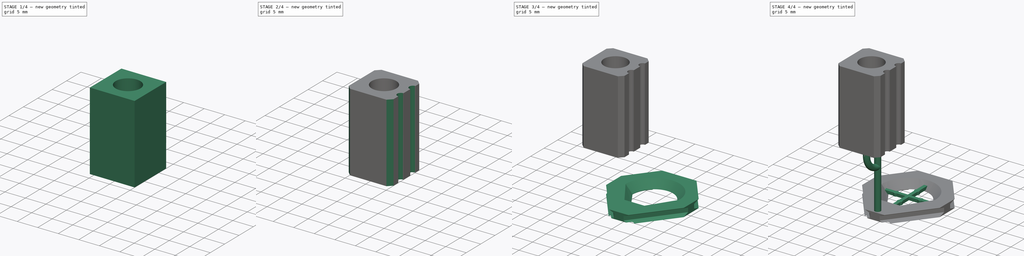
[diagram: build sequence overview — one tinted view per stage of 4, left to right]
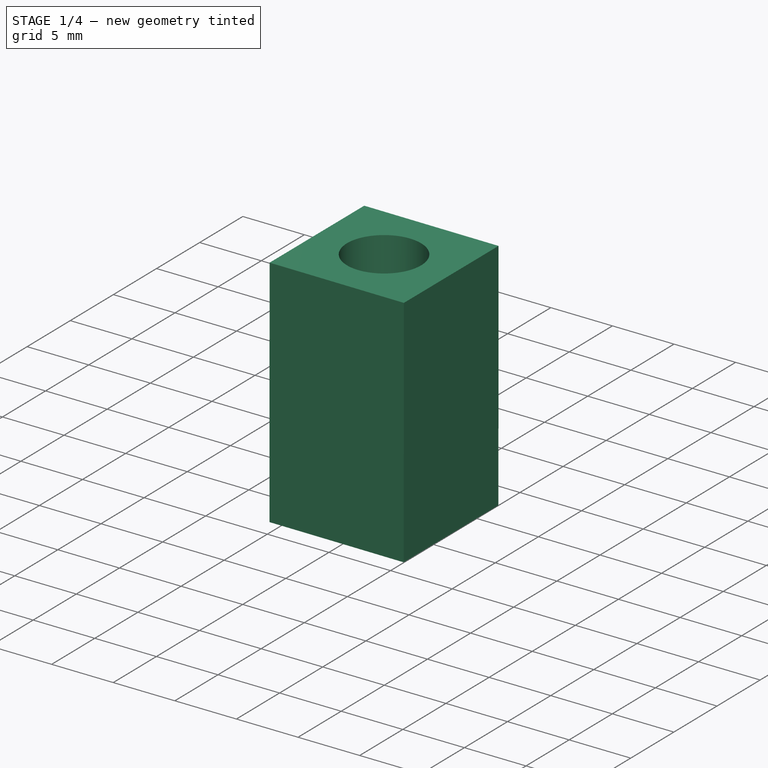
[diagram: stage 1 of 4 — iso view after this stage's code; geometry added in this stage tinted green]
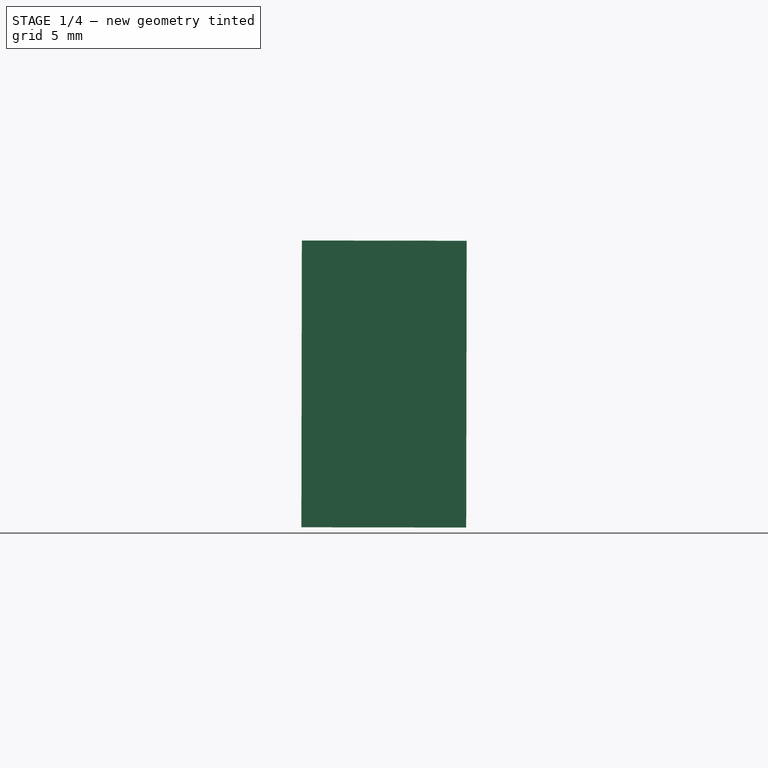
[diagram: stage 1 of 4 — front view after this stage's code; geometry added in this stage tinted green]
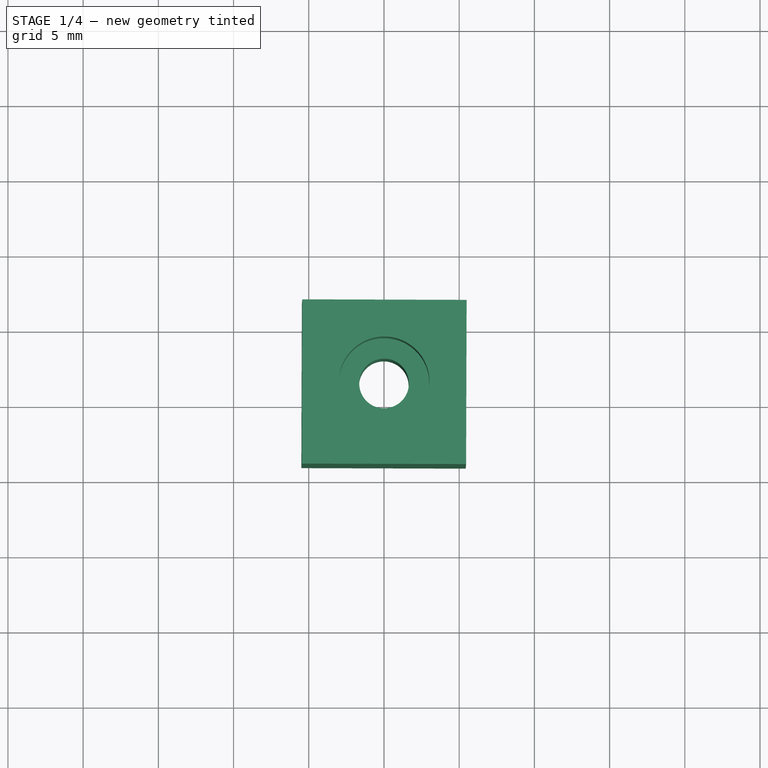
[diagram: stage 1 of 4 — top view after this stage's code; geometry added in this stage tinted green]
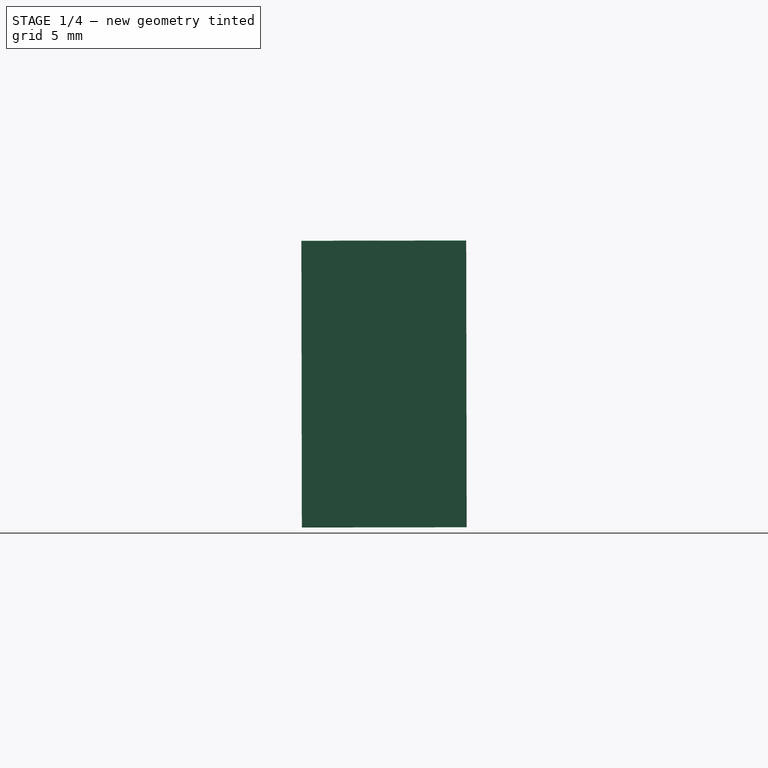
[diagram: stage 1 of 4 — right view after this stage's code; geometry added in this stage tinted green]
FCSTD DOCUMENT  (FreeCAD 0.17R13522 (Git))
Label: Head plate 3.4
License: All rights reserved
LicenseURL: http://en.wikipedia.org/wiki/All_rights_reserved
objects: Sketcher::SketchObject×18, Drawing::FeatureViewPython×7, PartDesign::Pocket×6, PartDesign::Pad×3, PartDesign::Body×2, PartDesign::AdditiveLoft×1, PartDesign::SubtractiveLoft×1, PartDesign::AdditivePipe×1, PartDesign::Chamfer×1, Drawing::FeatureViewPart×1, Drawing::FeaturePage×1
note: 45 computed .brp shape members not serialized (recipe doc carries the construction recipe); baked Part::Feature solids carry a one-line shape summary decoded from their .brp

FEATURE [Sketcher::SketchObject] Sketch031  label="Attachment cube main body"
  MapMode = 5
  Placement = pos=(0,0,0) rot=(0.579113,0.576467,0.576467;2.0944rad)
  expr: Constraints[35] = 0.5" + 0.085000000000000006"
  expr: Constraints[36] = (0.42999999999999999" - 0.10000000000000001" * 2) / 3
  sketch-geometry (16):
    g0: LineSegment [constr] StartX=-14.5457 StartY=18.669 StartZ=0 EndX=-14.5457 EndY=28.575 EndZ=0
    g1: LineSegment [constr] StartX=-14.5457 StartY=28.575 StartZ=0 EndX=-17.0857 EndY=28.575 EndZ=0
    g2: LineSegment [constr] StartX=-17.0857 StartY=28.575 StartZ=0 EndX=-17.0857 EndY=18.669 EndZ=0
    g3: ArcOfCircle [constr] CenterX=-13.2757 CenterY=18.669 CenterZ=0 NormalX=0 NormalY=0 NormalZ=1 AngleXU=0 Radius=1.27 StartAngle=3.14159 EndAngle=4.71239
    g4: ArcOfCircle [constr] CenterX=-13.2757 CenterY=18.669 CenterZ=0 NormalX=0 NormalY=0 NormalZ=1 AngleXU=0 Radius=3.81 StartAngle=3.14159 EndAngle=4.71239
    g5: LineSegment [constr] StartX=-13.2757 StartY=14.859 StartZ=0 EndX=-10.0584 EndY=14.859 EndZ=0
    g6: LineSegment [constr] StartX=-13.2757 StartY=17.399 StartZ=0 EndX=-12.5984 EndY=17.399 EndZ=0
    g7: LineSegment StartX=-19.0331 StartY=37.719 StartZ=0 EndX=-8.11106 EndY=37.719 EndZ=0
    g8: LineSegment StartX=-8.11106 StartY=37.719 StartZ=0 EndX=-8.11106 EndY=18.669 EndZ=0
    g9: LineSegment StartX=-8.11106 StartY=18.669 StartZ=0 EndX=-19.0331 EndY=18.669 EndZ=0
    g10: LineSegment StartX=-19.0331 StartY=18.669 StartZ=0 EndX=-19.0331 EndY=37.719 EndZ=0
    g11: LineSegment [constr] StartX=-11.3284 StartY=28.575 StartZ=0 EndX=-11.3284 EndY=2.159 EndZ=0
    g12: LineSegment [constr] StartX=-10.0584 StartY=14.859 StartZ=0 EndX=-10.0584 EndY=28.575 EndZ=0
    g13: LineSegment [constr] StartX=-10.0584 StartY=28.575 StartZ=0 EndX=-12.5984 EndY=28.575 EndZ=0
    g14: LineSegment [constr] StartX=-12.5984 StartY=28.575 StartZ=0 EndX=-12.5984 EndY=17.399 EndZ=0
    g15: LineSegment [constr] StartX=-13.5721 StartY=37.719 StartZ=0 EndX=-13.5721 EndY=18.669 EndZ=0
  constraints (45):
    c: Coincident(g0,g1)
    c: Coincident(g1,g2)
    c: Vertical(g2)
    c: Vertical(g0)
    c: Horizontal(g1)
    c: Distance(g1) = 2.54
    c: Coincident(g3,g4)
    c: Horizontal(g5)
    c: Horizontal(g6)
    c: Tangent(g2,g4) = -1.5708
    c: Tangent(g3,g6) = -1.5708
    c: Tangent(g0,g3) = 1.5708
    c: Coincident(g7,g8)
    c: Coincident(g8,g9)
    c: Coincident(g9,g10)
    c: Coincident(g10,g7)
    c: Horizontal(g7)
    c: Horizontal(g9)
    c: Vertical(g8)
    c: Vertical(g10)
    c: Distance(g7) = 10.922
    c: Tangent(g4,g5) = -1.5708
    c: DistanceY(g1) = 28.575
    c: Vertical(g11)
    c: DistanceY(g11) = 28.575
    c: DistanceY(g11) = 2.159
    c: Coincident(g12,g13)
    c: Coincident(g13,g14)
    c: Coincident(g6,g14)
    c: Vertical(g12)
    c: Vertical(g14)
    c: Coincident(g5,g12)
    c: Equal(g13,g1)
    c: DistanceY(g13,g0) = 0
    c: Symmetric(g13,g12,g11)
    c: DistanceY(g5) = 14.859
    c: DistanceX(g0,g13) = 1.94733
    c: Radius(g4) = 3.81
    c: Distance(g10) = 19.05
    c: DistanceY(g2,g9) = 0
    c: PointOnObject(g15,g7)
    c: PointOnObject(g15,g9)
    c: Symmetric(g7,g7,g15)
    c: Symmetric(g1,g12,g15)
    c: DistanceX(g15) = -13.5721
FEATURE [PartDesign::Pad] Pad003
  Length = 10.922
  Length2 = 100.076
  Midplane = true
  Placement = pos=(0,0,0) rot=(0.579113,0.576467,0.576467;2.0944rad)
  Profile = -> Sketch031
  Type = 0
FEATURE [Sketcher::SketchObject] Sketch032  label="Cactus attachment post slots"
  MapMode = 5
  Placement = pos=(5.46097,-0.0166848,-0.00834878) rot=(0.579113,0.576467,0.576467;2.0944rad)
  Support = -> [Pad003]
  expr: Constraints[23] = -0.44600000000000001"
  expr: Constraints[36] = 0.5" + 0.085000000000000006"
  expr: Constraints[37] = (0.42999999999999999" - 0.10000000000000001" * 2) / 3
  expr: Constraints[39] = (0.42999999999999999" - 0.10000000000000001" * 2) / 3
  sketch-geometry (15):
    g0: LineSegment StartX=-14.5457 StartY=18.669 StartZ=0 EndX=-14.5457 EndY=38.1 EndZ=0
    g1: LineSegment StartX=-14.5457 StartY=38.1 StartZ=0 EndX=-17.0857 EndY=38.1 EndZ=0
    g2: LineSegment StartX=-17.0857 StartY=38.1 StartZ=0 EndX=-17.0857 EndY=18.669 EndZ=0
    g3: ArcOfCircle CenterX=-13.2757 CenterY=18.669 CenterZ=0 NormalX=0 NormalY=0 NormalZ=1 AngleXU=0 Radius=1.27 StartAngle=3.14159 EndAngle=4.71239
    g4: ArcOfCircle CenterX=-13.2757 CenterY=18.669 CenterZ=0 NormalX=0 NormalY=0 NormalZ=1 AngleXU=0 Radius=3.81 StartAngle=3.14159 EndAngle=4.71239
    g5: LineSegment StartX=-13.2757 StartY=14.859 StartZ=0 EndX=-10.0584 EndY=14.859 EndZ=0
    g6: LineSegment StartX=-13.2757 StartY=17.399 StartZ=0 EndX=-12.5984 EndY=17.399 EndZ=0
    g7: LineSegment [constr] StartX=-19.0331 StartY=37.719 StartZ=0 EndX=-8.11107 EndY=37.719 EndZ=0
    g8: LineSegment [constr] StartX=-8.11107 StartY=37.719 StartZ=0 EndX=-8.11107 EndY=18.669 EndZ=0
    g9: LineSegment [constr] StartX=-8.11107 StartY=18.669 StartZ=0 EndX=-19.0331 EndY=18.669 EndZ=0
    g10: LineSegment [constr] StartX=-19.0331 StartY=18.669 StartZ=0 EndX=-19.0331 EndY=37.719 EndZ=0
    g11: LineSegment [constr] StartX=-11.3284 StartY=28.575 StartZ=0 EndX=-11.3284 EndY=2.159 EndZ=0
    g12: LineSegment StartX=-10.0584 StartY=14.859 StartZ=0 EndX=-10.0584 EndY=38.1 EndZ=0
    g13: LineSegment StartX=-10.0584 StartY=38.1 StartZ=0 EndX=-12.5984 EndY=38.1 EndZ=0
    g14: LineSegment StartX=-12.5984 StartY=38.1 StartZ=0 EndX=-12.5984 EndY=17.399 EndZ=0
  constraints (43):
    c: Coincident(g0,g1)
    c: Coincident(g1,g2)
    c: Vertical(g2)
    c: Vertical(g0)
    c: Horizontal(g1)
    c: Distance(g1) = 2.54
    c: Coincident(g3,g4)
    c: Horizontal(g5)
    c: Horizontal(g6)
    c: Tangent(g2,g4) = -1.5708
    c: Tangent(g3,g6) = -1.5708
    c: Tangent(g0,g3) = 1.5708
    c: Coincident(g7,g8)
    c: Coincident(g8,g9)
    c: Coincident(g9,g10)
    c: Coincident(g10,g7)
    c: Horizontal(g7)
    c: Horizontal(g9)
    c: Vertical(g8)
    c: Vertical(g10)
    c: Distance(g7) = 10.922
    c: Tangent(g4,g5) = -1.5708
    c: Vertical(g11)
    c: DistanceX(g11) = -11.3284
    c: DistanceY(g11) = 28.575
    c: DistanceY(g11) = 2.159
    c: Coincident(g12,g13)
    c: Coincident(g13,g14)
    c: Coincident(g6,g14)
    c: Horizontal(g13)
    c: Vertical(g12)
    c: Vertical(g14)
    c: Coincident(g5,g12)
    c: Equal(g13,g1)
    c: DistanceY(g13,g0) = 0
    c: Symmetric(g13,g12,g11)
    c: DistanceY(g5) = 14.859
    c: DistanceX(g0,g13) = 1.94733
    c: Radius(g4) = 3.81
    c: DistanceX(g12,g7) = 1.94733
    c: Distance(g10) = 19.05
    c: DistanceY(g2,g9) = 0
    c: DistanceY(g1) = 38.1
FEATURE [Sketcher::SketchObject] Sketch033  label="Stereotax mounting post hole"
  MapMode = 5
  Placement = pos=(0.0574889,-0.0576649,37.7189) rot=(0,0.001524,-0.999999;1.57385rad)
  expr: Constraints[2] = 0.222" / 2 + 0.0074999999999999997"
  expr: Constraints[1] = 0.53433299999999995"
  sketch-geometry (1):
    g0: Circle CenterX=13.5721 CenterY=0 CenterZ=0 NormalX=0 NormalY=0 NormalZ=1 AngleXU=0 Radius=3.0099
  constraints (3):
    c: DistanceY(g0) = 0
    c: DistanceX(g0) = 13.5721
    c: Radius(g0) = 3.0099
FEATURE [PartDesign::Pocket] Pocket004
  BaseFeature = -> Pad003
  Length = 7.239
  Length2 = 100.076
  Placement = pos=(0,0,0) rot=(0.579113,0.576467,0.576467;2.0944rad)
  Profile = -> Sketch033
  Type = 0
FEATURE [Sketcher::SketchObject] Sketch035  label="Attachment bolt shaft hole"
  MapMode = 5
  Placement = pos=(0.0574889,-0.0576649,37.7189) rot=(0,0.001524,-0.999999;1.57385rad)
  Support = -> [Pocket004]
  expr: Constraints[2] = 0.12" / 2 + 0.0050000000000000001"
  expr: Constraints[1] = 0.53433299999999995"
  sketch-geometry (1):
    g0: Circle CenterX=13.5721 CenterY=0 CenterZ=0 NormalX=0 NormalY=0 NormalZ=1 AngleXU=0 Radius=1.651
  constraints (3):
    c: DistanceY(g0) = 0
    c: DistanceX(g0) = 13.5721
    c: Radius(g0) = 1.651
FEATURE [PartDesign::Pocket] Pocket005
  BaseFeature = -> Pocket004
  Length = 5.08
  Length2 = 100.076
  Placement = pos=(0,0,0) rot=(0.579113,0.576467,0.576467;2.0944rad)
  Profile = -> Sketch035
  Type = 1
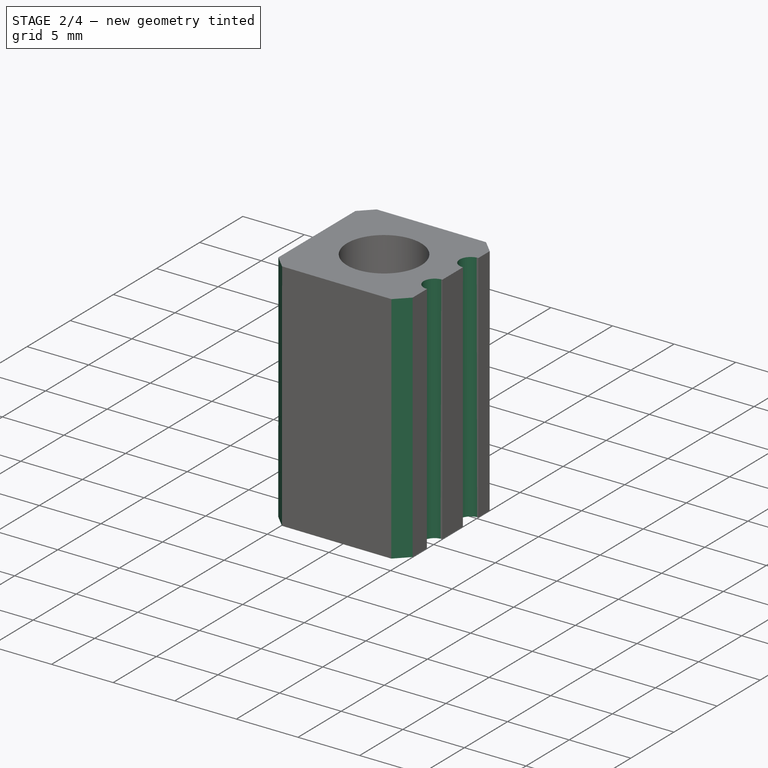
[diagram: stage 2 of 4 — iso view after this stage's code; geometry added in this stage tinted green]
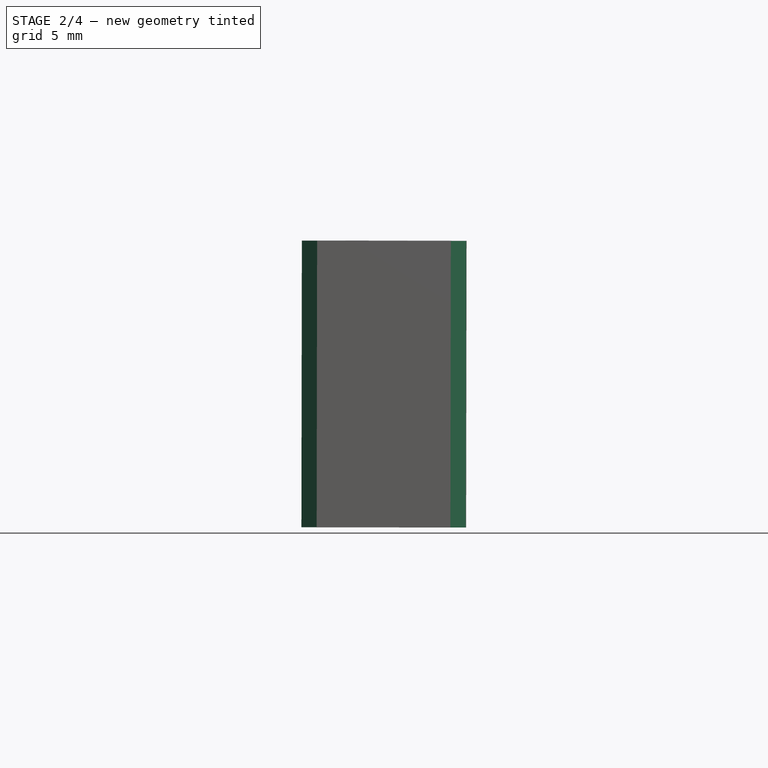
[diagram: stage 2 of 4 — front view after this stage's code; geometry added in this stage tinted green]
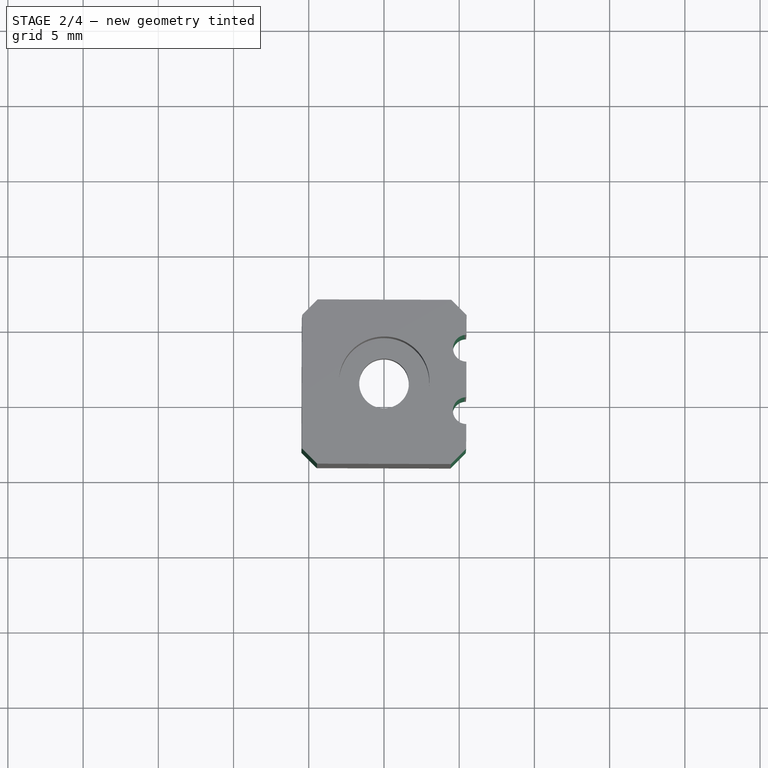
[diagram: stage 2 of 4 — top view after this stage's code; geometry added in this stage tinted green]
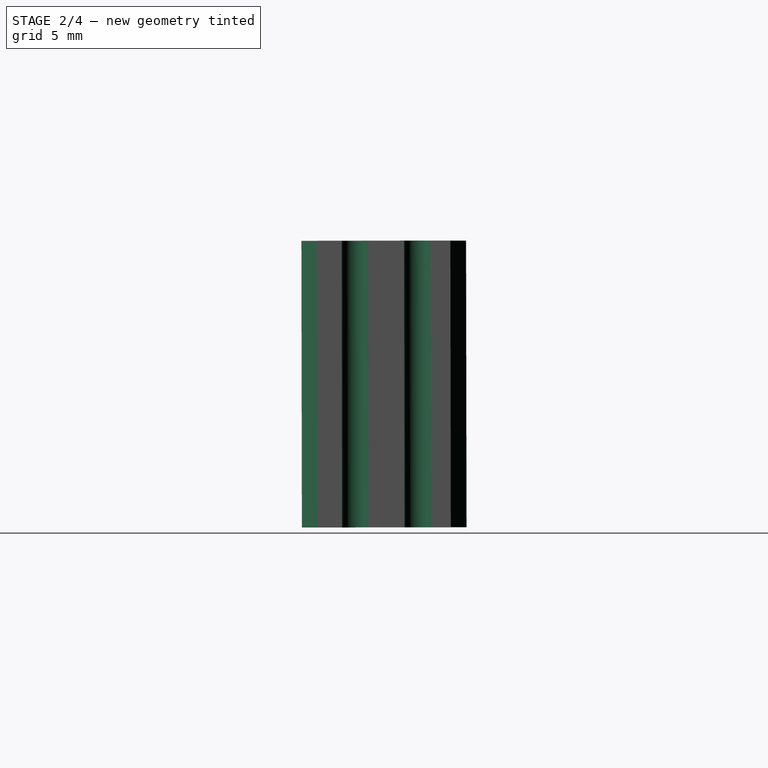
[diagram: stage 2 of 4 — right view after this stage's code; geometry added in this stage tinted green]
FEATURE [Sketcher::SketchObject] Sketch036  label="Attachment bolt head hole"
  MapMode = 5
  Placement = pos=(0.0284541,-0.0285412,18.669) rot=(0.708187,0.706025,0;3.14375rad)
  Support = -> [Pocket005]
  expr: Constraints[2] = 0.185" / 2 + 0.014999999999999999"
  expr: Constraints[1] = -0.53433299999999995"
  sketch-geometry (1):
    g0: Circle CenterX=-13.5721 CenterY=0 CenterZ=0 NormalX=0 NormalY=0 NormalZ=1 AngleXU=0 Radius=2.7305
  constraints (3):
    c: DistanceY(g0) = 0
    c: DistanceX(g0) = -13.5721
    c: Radius(g0) = 2.7305
FEATURE [PartDesign::Pocket] Pocket006
  BaseFeature = -> Pocket005
  Length = 7.62
  Length2 = 100.076
  Placement = pos=(0,0,0) rot=(0.579113,0.576467,0.576467;2.0944rad)
  Profile = -> Sketch036
  Type = 0
FEATURE [PartDesign::Body] Body
  Group = -> [Sketch,Sketch013,Sketch014,AdditiveLoft,SubtractiveLoft,Sketch006,Pocket,Sketch018,Sketch022,Pocket002,Sketch025,Sketch019,Sketch028,Sketch029,Pad,Pad001,Sketch037,Sketch038,AdditivePipe]
  Origin = -> Origin
  Placement = pos=(5.461,0,0) rot=(0,0,1;0rad)
  Tip = -> AdditivePipe
  expr: Placement.Base.x = 0.42999999999999999" / 2
FEATURE [Sketcher::SketchObject] Sketch039  label="Cactus channels"
  MapMode = 5
  Placement = pos=(0.0284541,-0.0285412,18.669) rot=(0.708187,0.706025,0;3.14375rad)
  Support = -> [Pocket006]
  expr: Constraints[4] = 0.029999999999999999" + 0.0050000000000000001"
  expr: Constraints[2] = -0.44600000000000001"
  expr: Constraints[3] = 0.42999999999999999" / 3 + 0.059999999999999998" / 3
  expr: Constraints[1] = 0.42999999999999999" / 2
  sketch-geometry (2):
    g0: Circle CenterX=-15.4771 CenterY=5.461 CenterZ=0 NormalX=0 NormalY=0 NormalZ=1 AngleXU=0 Radius=0.889
    g1: Circle CenterX=-11.3284 CenterY=5.461 CenterZ=0 NormalX=0 NormalY=0 NormalZ=1 AngleXU=0 Radius=0.889
  constraints (6):
    c: DistanceY(g0,g1) = 0
    c: DistanceY(g0) = 5.461
    c: DistanceX(g1) = -11.3284
    c: DistanceX(g0,g1) = 4.14867
    c: Radius(g0) = 0.889
    c: Equal(g0,g1)
FEATURE [PartDesign::Pocket] Pocket007
  BaseFeature = -> Pocket006
  Length = 5.08
  Length2 = 100.076
  Placement = pos=(0,0,0) rot=(0.579113,0.576467,0.576467;2.0944rad)
  Profile = -> Sketch039
  Type = 1
FEATURE [PartDesign::Chamfer] Chamfer
  Base = -> Pocket007 [Edge14,Edge23,Edge10,Edge12]
  BaseFeature = -> Pocket007
  Placement = pos=(0,0,0) rot=(0.579113,0.576467,0.576467;2.0944rad)
  Size = 1.016
FEATURE [PartDesign::Body] Body001  label="Attachment square"
  Group = -> [Sketch031,Pad003,Sketch032,Sketch033,Pocket004,Sketch035,Pocket005,Sketch036,Pocket006,Sketch039,Pocket007,Chamfer]
  Origin = -> Origin001
  Tip = -> Chamfer
FEATURE [Drawing::FeatureViewPart] Ortho  label="Ortho_0_0"
  Direction = (0,0,1)
  HiddenWidth = 0.15
  LineWidth = 0.35
  Rotation = 0
  Scale = 8
  ShowHiddenLines = true
  ShowSmoothLines = false
  Source = -> AdditivePipe
  Tolerance = 0.05
  ViewResult = <blob: 14164 chars omitted>
  Visible = false
  X = 105
  Y = 123.421
FEATURE [Drawing::FeatureViewPython] dim001  # drawing view (typed FeaturePython)
  Rotation = 0
  ViewResult = <g> \n  <line x1="99.444000" y1="79.043240" x2="8.963493" y2="79.043240" style="stroke:rgb(0,0,255);stroke-width:0.50" />\n<line x1="87.267760" y1="164.567560" x2="8.963493" y2="164.567560" style="stroke:rgb(0,0,255);stroke-width:0.50" />\n<line x1="9.963493" y1="79.043240" x2="9.963493" y2="164.567560" style="stroke:rgb(0,0,255);stroke-width:0.50" /> \n  <polygon points="9.963493,164.567560 10.963493,161.567560 9.963493,160.567560 8.963493,161.567560" style="fill:rgb(0,0,255);stroke:rgb(0,0,255);stroke-width:0" /><polygon points="9.963493,79.043240 8.963493,82.043240 9.963493,83.043240 10.963493,82.043240" style="fill:rgb(0,0,255);stroke:rgb(0,0,255);stroke-width:0" /> \n  <text x="7.963493" y="121.805400" font-family="inherit" font-size="8" fill="rgb(0,0,255)" text-anchor="middle" transform="rotate(-90.000000 7.963493,121.805400)" >10.691</text> </g>
  Visible = false
  X = 0
  Y = 0
  arrowL1 = 3
  arrowL2 = 1
  arrowW = 2
  arrow_scheme = 0
  autoPlaceOffset = 2
  autoPlaceText = true
  click1_x = 9.96349
  click1_y = 153.588
  click2_x = 9.96349
  click2_y = 153.588
  comma_decimal_place = false
  dimension_line_overshoot = 1
  gap_datum_points = 2
  halfDimension_linear = false
  lineColor = rgb(0,0,255)
  strokeWidth = 0.5
  textFormat_linear = %(value)3.3f
  textRenderer_color = rgb(0,0,255)
  textRenderer_family = inherit
  textRenderer_size = 8
  unit_custom_scale = 1
  unit_scheme = 1
FEATURE [Drawing::FeatureViewPython] dim002  # drawing view (typed FeaturePython)
  Rotation = 0
  ViewResult = <g> \n  <line x1="99.444000" y1="79.043240" x2="21.370861" y2="79.043240" style="stroke:rgb(0,0,255);stroke-width:0.50" />\n<line x1="103.000000" y1="123.421000" x2="21.370861" y2="123.421000" style="stroke:rgb(0,0,255);stroke-width:0.50" />\n<line x1="22.370861" y1="79.043240" x2="22.370861" y2="123.421000" style="stroke:rgb(0,0,255);stroke-width:0.50" /> \n  <polygon points="22.370861,123.421000 23.370861,120.421000 22.370861,119.421000 21.370861,120.421000" style="fill:rgb(0,0,255);stroke:rgb(0,0,255);stroke-width:0" /><polygon points="22.370861,79.043240 21.370861,82.043240 22.370861,83.043240 23.370861,82.043240" style="fill:rgb(0,0,255);stroke:rgb(0,0,255);stroke-width:0" /> \n  <text x="20.370861" y="101.232120" font-family="inherit" font-size="8" fill="rgb(0,0,255)" text-anchor="middle" transform="rotate(-90.000000 20.370861,101.232120)" >5.547</text> </g>
  Visible = false
  X = 0
  Y = 0
  arrowL1 = 3
  arrowL2 = 1
  arrowW = 2
  arrow_scheme = 0
  autoPlaceOffset = 2
  autoPlaceText = true
  click1_x = 22.3709
  click1_y = 118.622
  click2_x = 22.3709
  click2_y = 118.622
  comma_decimal_place = false
  dimension_line_overshoot = 1
  gap_datum_points = 2
  halfDimension_linear = false
  lineColor = rgb(0,0,255)
  strokeWidth = 0.5
  textFormat_linear = %(value)3.3f
  textRenderer_color = rgb(0,0,255)
  textRenderer_family = inherit
  textRenderer_size = 8
  unit_custom_scale = 1
  unit_scheme = 1
FEATURE [Drawing::FeatureViewPython] dim003  # drawing view (typed FeaturePython)
  Rotation = 0
  ViewResult = <g> \n  <line x1="103.000000" y1="123.421000" x2="21.370861" y2="123.421000" style="stroke:rgb(0,0,255);stroke-width:0.50" />\n<line x1="87.267760" y1="164.567560" x2="21.370861" y2="164.567560" style="stroke:rgb(0,0,255);stroke-width:0.50" />\n<line x1="22.370861" y1="123.421000" x2="22.370861" y2="164.567560" style="stroke:rgb(0,0,255);stroke-width:0.50" /> \n  <polygon points="22.370861,164.567560 23.370861,161.567560 22.370861,160.567560 21.370861,161.567560" style="fill:rgb(0,0,255);stroke:rgb(0,0,255);stroke-width:0" /><polygon points="22.370861,123.421000 21.370861,126.421000 22.370861,127.421000 23.370861,126.421000" style="fill:rgb(0,0,255);stroke:rgb(0,0,255);stroke-width:0" /> \n  <text x="20.370861" y="143.994280" font-family="inherit" font-size="8" fill="rgb(0,0,255)" text-anchor="middle" transform="rotate(-90.000000 20.370861,143.994280)" >5.143</text> </g>
  Visible = false
  X = 0
  Y = 0
  arrowL1 = 3
  arrowL2 = 1
  arrowW = 2
  arrow_scheme = 0
  autoPlaceOffset = 2
  autoPlaceText = true
  click1_x = 22.3709
  click1_y = 153.4
  click2_x = 22.3709
  click2_y = 153.4
  comma_decimal_place = false
  dimension_line_overshoot = 1
  gap_datum_points = 2
  halfDimension_linear = false
  lineColor = rgb(0,0,255)
  strokeWidth = 0.5
  textFormat_linear = %(value)3.3f
  textRenderer_color = rgb(0,0,255)
  textRenderer_family = inherit
  textRenderer_size = 8
  unit_custom_scale = 1
  unit_scheme = 1
FEATURE [Drawing::FeatureViewPython] dim004  # drawing view (typed FeaturePython)
  Rotation = 0
  ViewResult = <g> \n  <line x1="24.701600" y1="99.238600" x2="24.701600" y2="9.942116" style="stroke:rgb(0,0,255);stroke-width:0.50" />\n<line x1="185.298400" y1="99.238600" x2="185.298400" y2="9.942116" style="stroke:rgb(0,0,255);stroke-width:0.50" />\n<line x1="24.701600" y1="10.942116" x2="185.298400" y2="10.942116" style="stroke:rgb(0,0,255);stroke-width:0.50" /> \n  <polygon points="185.298400,10.942116 182.298400,9.942116 181.298400,10.942116 182.298400,11.942116" style="fill:rgb(0,0,255);stroke:rgb(0,0,255);stroke-width:0" /><polygon points="24.701600,10.942116 27.701600,11.942116 28.701600,10.942116 27.701600,9.942116" style="fill:rgb(0,0,255);stroke:rgb(0,0,255);stroke-width:0" /> \n  <text x="105.000000" y="8.942116" font-family="inherit" font-size="8" fill="rgb(0,0,255)" text-anchor="middle" transform="rotate(0.000000 105.000000,8.942116)" >20.075</text> </g>
  Visible = false
  X = 0
  Y = 0
  arrowL1 = 3
  arrowL2 = 1
  arrowW = 2
  arrow_scheme = 0
  autoPlaceOffset = 2
  autoPlaceText = true
  click1_x = 164.132
  click1_y = 10.9421
  click2_x = 164.132
  click2_y = 10.9421
  comma_decimal_place = false
  dimension_line_overshoot = 1
  gap_datum_points = 2
  halfDimension_linear = false
  lineColor = rgb(0,0,255)
  strokeWidth = 0.5
  textFormat_linear = %(value)3.3f
  textRenderer_color = rgb(0,0,255)
  textRenderer_family = inherit
  textRenderer_size = 8
  unit_custom_scale = 1
  unit_scheme = 1
FEATURE [Drawing::FeatureViewPython] dim005  # drawing view (typed FeaturePython)
  Rotation = 0
  ViewResult = <g> \n  <line x1="63.919520" y1="121.421000" x2="63.919520" y2="21.550755" style="stroke:rgb(0,0,255);stroke-width:0.50" />\n<line x1="146.080480" y1="121.421000" x2="146.080480" y2="21.550755" style="stroke:rgb(0,0,255);stroke-width:0.50" />\n<line x1="63.919520" y1="22.550755" x2="146.080480" y2="22.550755" style="stroke:rgb(0,0,255);stroke-width:0.50" /> \n  <polygon points="146.080480,22.550755 143.080480,21.550755 142.080480,22.550755 143.080480,23.550755" style="fill:rgb(0,0,255);stroke:rgb(0,0,255);stroke-width:0" /><polygon points="63.919520,22.550755 66.919520,23.550755 67.919520,22.550755 66.919520,21.550755" style="fill:rgb(0,0,255);stroke:rgb(0,0,255);stroke-width:0" /> \n  <text x="105.000000" y="20.550755" font-family="inherit" font-size="8" fill="rgb(0,0,255)" text-anchor="middle" transform="rotate(0.000000 105.000000,20.550755)" >10.27</text> </g>
  Visible = false
  X = 0
  Y = 0
  arrowL1 = 3
  arrowL2 = 1
  arrowW = 2
  arrow_scheme = 0
  autoPlaceOffset = 2
  autoPlaceText = true
  click1_x = 175.473
  click1_y = 22.5508
  click2_x = 175.473
  click2_y = 22.5508
  comma_decimal_place = false
  dimension_line_overshoot = 1
  gap_datum_points = 2
  halfDimension_linear = false
  lineColor = rgb(0,0,255)
  strokeWidth = 0.5
  textFormat_linear = %(value)3.3f
  textRenderer_color = rgb(0,0,255)
  textRenderer_family = inherit
  textRenderer_size = 8
  unit_custom_scale = 1
  unit_scheme = 1
FEATURE [Drawing::FeatureViewPython] text001  # drawing view (typed FeaturePython)
  Rotation = 0
  ViewResult = <g> <text x="88.871182" y="285.828938" font-family="inherit" font-size="10" fill="rgb(0,0,0)" text-anchor="inherit" transform="rotate(0.000000 88.871182,285.828938)" >Dimensions in mm</text> </g>
  Visible = false
  X = 0
  Y = 0
  click1_x = 88.8712
  click1_y = 285.829
  rotation = 0
  text = Dimensions in mm
  textRenderer_addText_color = rgb(0,0,0)
  textRenderer_addText_family = inherit
  textRenderer_addText_size = 10
FEATURE [Drawing::FeatureViewPython] text002  # drawing view (typed FeaturePython)
  Rotation = 0
  ViewResult = <g> <text x="5.284232" y="291.593555" font-family="inherit" font-size="5" fill="rgb(0,0,0)" text-anchor="inherit" transform="rotate(0.000000 5.284232,291.593555)" >v3.4</text> </g>
  Visible = false
  X = 0
  Y = 0
  click1_x = 5.28423
  click1_y = 291.594
  rotation = 0
  text = v3.4
  textRenderer_addText_color = rgb(0,0,0)
  textRenderer_addText_family = inherit
  textRenderer_addText_size = 5
FEATURE [Drawing::FeaturePage] Page
  Group = -> [Ortho,dim001,dim002,dim003,dim004,dim005,text001,text002]
  Template = C:/Program Files/FreeCAD 0.17/data/Mod/Drawing/Templates/A4_Portrait_plain.svg
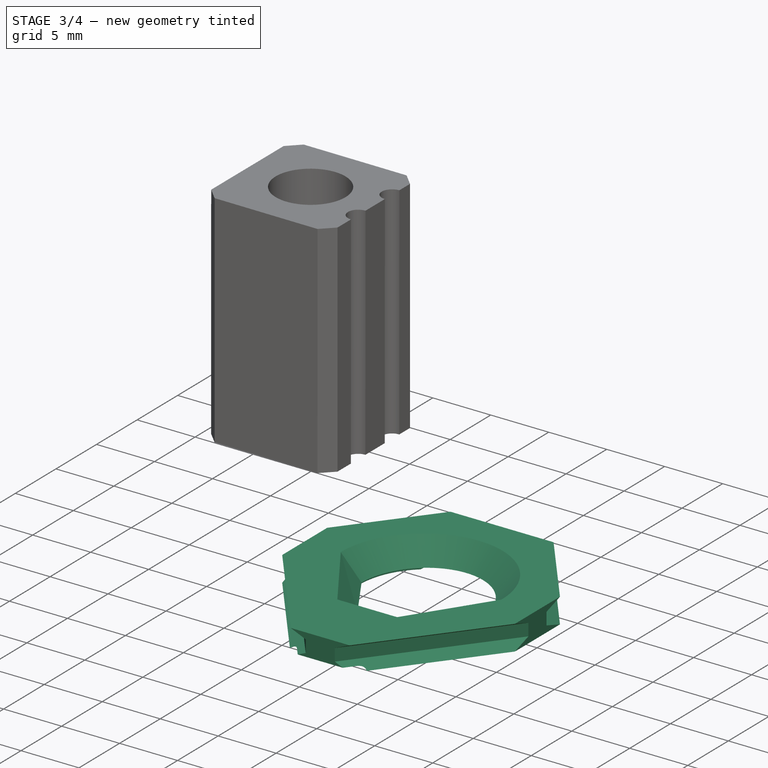
[diagram: stage 3 of 4 — iso view after this stage's code; geometry added in this stage tinted green]
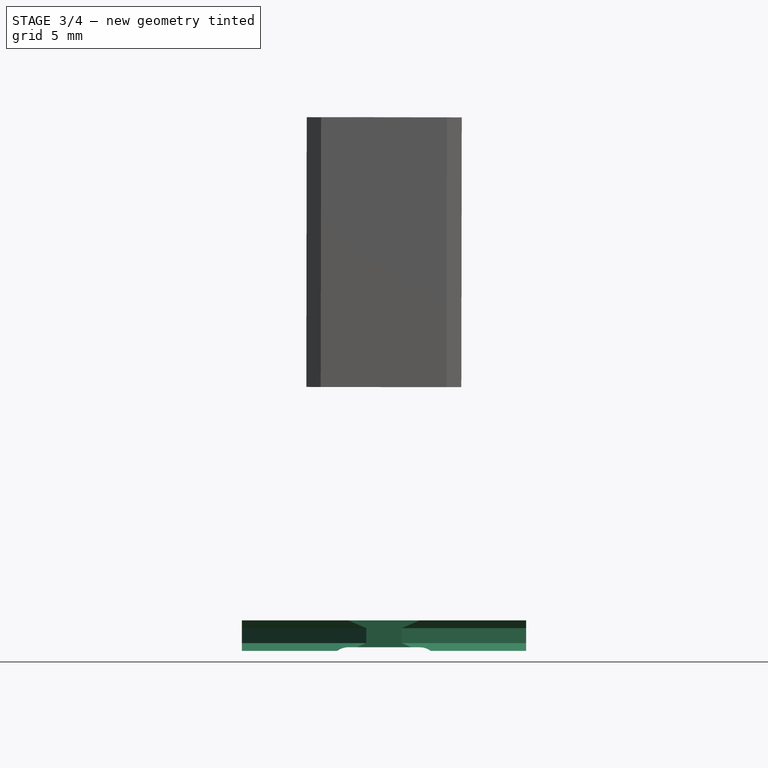
[diagram: stage 3 of 4 — front view after this stage's code; geometry added in this stage tinted green]
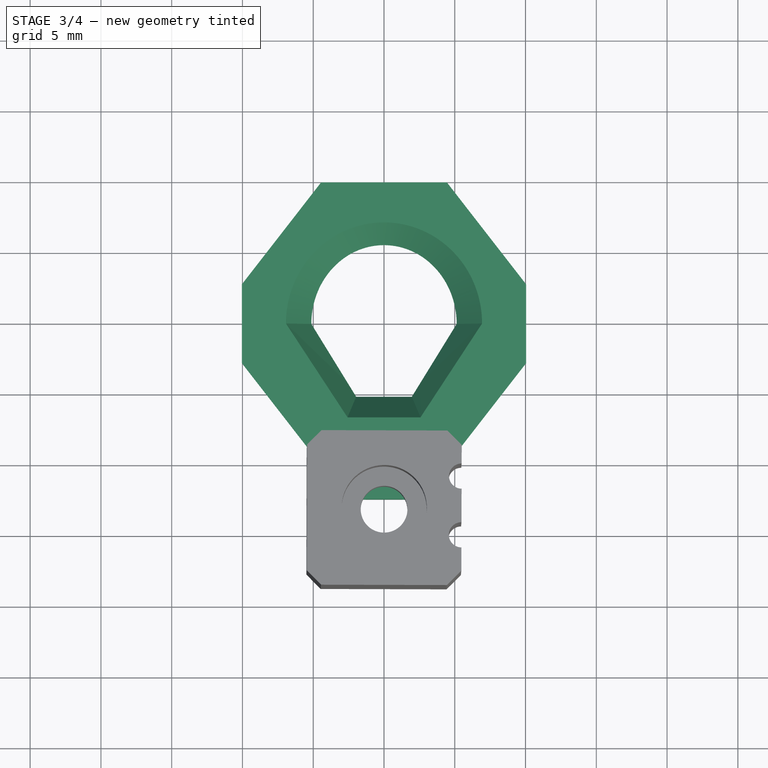
[diagram: stage 3 of 4 — top view after this stage's code; geometry added in this stage tinted green]
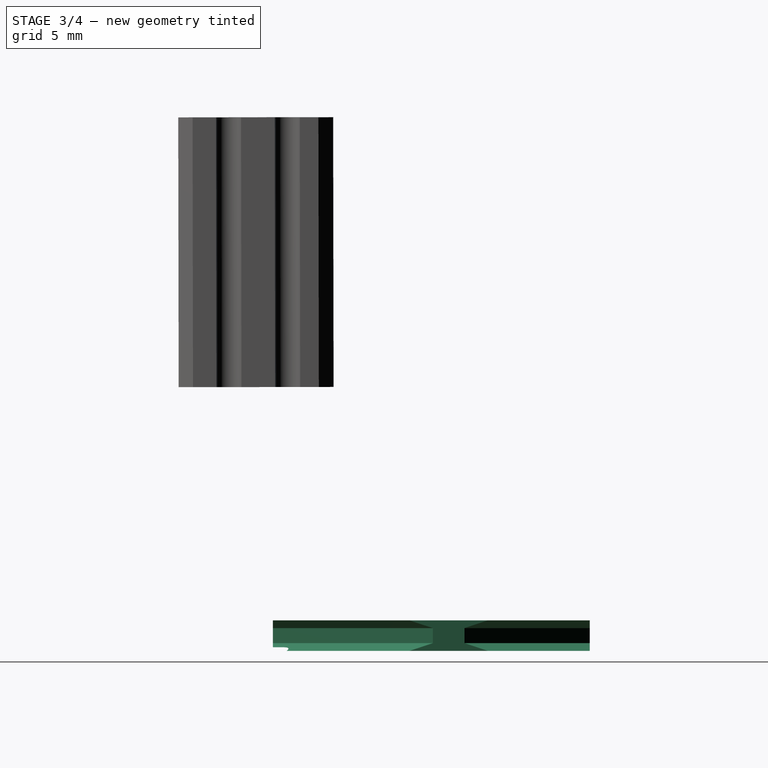
[diagram: stage 3 of 4 — right view after this stage's code; geometry added in this stage tinted green]
FEATURE [Sketcher::SketchObject] Sketch  label="Main profile bottom"
  MapMode = 5
  Support = -> [XY_Plane]
  sketch-geometry (10):
    g0: LineSegment StartX=-4.445 StartY=9.9694 StartZ=0 EndX=4.445 EndY=9.9694 EndZ=0
    g1: LineSegment StartX=4.445 StartY=9.9694 StartZ=0 EndX=10.0373 EndY=2.7728 EndZ=0
    g2: LineSegment StartX=10.0373 StartY=2.7728 StartZ=0 EndX=10.0373 EndY=-2.7728 EndZ=0
    g3: LineSegment StartX=-10.0373 StartY=-2.7728 StartZ=0 EndX=-10.0373 EndY=2.7728 EndZ=0
    g4: LineSegment StartX=-10.0373 StartY=2.7728 StartZ=0 EndX=-4.445 EndY=9.9694 EndZ=0
    g5: LineSegment StartX=-10.0373 StartY=-2.7728 StartZ=0 EndX=-2.54 EndY=-12.4209 EndZ=0
    g6: LineSegment StartX=-2.54 StartY=-12.4209 StartZ=0 EndX=2.54 EndY=-12.4209 EndZ=0
    g7: LineSegment StartX=2.54 StartY=-12.4209 StartZ=0 EndX=10.0373 EndY=-2.7728 EndZ=0
    g8: LineSegment [constr] StartX=-10.0373 StartY=2.7728 StartZ=0 EndX=-12.192 EndY=2.8e-11 EndZ=0
    g9: LineSegment [constr] StartX=-12.192 StartY=2.8e-11 StartZ=0 EndX=-10.0373 EndY=-2.7728 EndZ=0
  constraints (28):
    c: Coincident(g0,g1)
    c: Coincident(g1,g2)
    c: Coincident(g3,g4)
    c: Coincident(g0,g4)
    c: Vertical(g3)
    c: Vertical(g2)
    c: Symmetric(g1,g2,g-1)
    c: Equal(g4,g1)
    c: Equal(g3,g2)
    c: Symmetric(g0,g0,g-2)
    c: Coincident(g5,g6)
    c: Coincident(g6,g7)
    c: Horizontal(g6)
    c: DistanceX(g6,g6) = 5.08
    c: Angle(g-1,g4) = 0.910189
    c: Angle(g5,g-1) = 0.910189
    c: Symmetric(g5,g6,g-2)
    c: Coincident(g8,g9)
    c: Coincident(g3,g8)
    c: Parallel(g8,g4)
    c: Parallel(g9,g5)
    c: DistanceX(g8) = -12.192
    c: Distance(g0) = 8.89
    c: Symmetric(g3,g1,g-2)
    c: Coincident(g3,g5)
    c: Coincident(g3,g9)
    c: Coincident(g2,g7)
    c: DistanceX(g8,g3) = 2.15468
FEATURE [Sketcher::SketchObject] Sketch013  label="Conical cutout top"
  MapMode = 5
  Placement = pos=(0,0,2.159) rot=(0,0,1;0rad)
  expr: Constraints[23] = 3mm * 14.288 / 9.7159999999999993 * 13.856 / 11.856
  expr: Constraints[6] = 8.1280000000000001mm * 2 - 4.4000000000000004mm + 2mm
  expr: Constraints[5] = 7.1280000000000001mm + 7.1600000000000001mm
  sketch-geometry (13):
    g0: Ellipse [constr] CenterX=0 CenterY=0 CenterZ=0 NormalX=0 NormalY=0 NormalZ=1 MajorRadius=7.144 MinorRadius=6.928 AngleXU=-1.5708
    g1: LineSegment [constr] StartX=0 StartY=-7.144 StartZ=0 EndX=0 EndY=7.144 EndZ=0
    g2: LineSegment [constr] StartX=6.928 StartY=0 StartZ=0 EndX=-6.928 EndY=0 EndZ=0
    g3: GeomPoint X=0 Y=-1.74343 Z=0
    g4: GeomPoint X=0 Y=1.74343 Z=0
    g5: LineSegment StartX=-6.928 StartY=0 StartZ=0 EndX=-2.57795 EndY=-6.63099 EndZ=0
    g6: LineSegment StartX=-2.57795 StartY=-6.63099 StartZ=0 EndX=2.57795 EndY=-6.63099 EndZ=0
    g7: LineSegment StartX=2.57795 StartY=-6.63099 StartZ=0 EndX=6.928 EndY=0 EndZ=0
    g8: ArcOfEllipse CenterX=0 CenterY=0 CenterZ=0 NormalX=0 NormalY=0 NormalZ=1 MajorRadius=7.144 MinorRadius=6.928 AngleXU=1.5708 StartAngle=4.71239 EndAngle=7.85398
    g9: LineSegment [constr] StartX=0 StartY=7.144 StartZ=0 EndX=0 EndY=-7.144 EndZ=0
    g10: LineSegment [constr] StartX=-6.928 StartY=0 StartZ=0 EndX=6.928 EndY=0 EndZ=0
    g11: GeomPoint X=0 Y=1.74343 Z=0
    g12: GeomPoint X=0 Y=-1.74343 Z=0
  constraints (18):
    c: InternalAlignment(g1-g4 -> g0) x4
    c: Horizontal(g2)
    c: DistanceY(g1,g1) = 14.288
    c: DistanceX(g2,g2) = 13.856
    c: Coincident(g0,g-1)
    c: Coincident(g5,g6)
    c: Coincident(g6,g7)
    c: Coincident(g2,g7)
    c: Coincident(g2,g5)
    c: Symmetric(g5,g6,g1)
    c: PointOnObject(g5,g0)
    c: InternalAlignment(g9-g12 -> g8) x4
    c: Coincident(g8,g10)
    c: Coincident(g8,g10)
    c: Coincident(g1,g9)
    c: Coincident(g8,g-1)
    c: DistanceX(g8,g2) = 0
    c: DistanceX(g6,g6) = 5.1559
FEATURE [Sketcher::SketchObject] Sketch014  label="Conical cutout bottom"
  MapMode = 5
  Placement = pos=(0,0,0) rot=(1,0,0;3.14159rad)
  expr: Constraints[14] = 3mm * 9.7919999999999998 / 7.7919999999999998
  expr: Constraints[4] = 6.0960000000000001mm + 7.6200000000000001mm - 4mm + 1mm
  expr: Constraints[5] = 6.0960000000000001mm * 2 - 4.4000000000000004mm + 2mm
  sketch-geometry (13):
    g0: Ellipse [constr] CenterX=0 CenterY=0 CenterZ=0 NormalX=0 NormalY=0 NormalZ=1 MajorRadius=5.358 MinorRadius=4.896 AngleXU=-1.5708
    g1: LineSegment [constr] StartX=0 StartY=-5.358 StartZ=0 EndX=0 EndY=5.358 EndZ=0
    g2: LineSegment [constr] StartX=4.896 StartY=0 StartZ=0 EndX=-4.896 EndY=0 EndZ=0
    g3: GeomPoint X=0 Y=-2.17654 Z=0
    g4: GeomPoint X=0 Y=2.17654 Z=0
    g5: LineSegment StartX=-4.896 StartY=0 StartZ=0 EndX=-1.88501 EndY=4.94496 EndZ=0
    g6: LineSegment StartX=-1.88501 StartY=4.94496 StartZ=0 EndX=1.88501 EndY=4.94496 EndZ=0
    g7: LineSegment StartX=1.88501 StartY=4.94496 StartZ=0 EndX=4.896 EndY=0 EndZ=0
    g8: ArcOfEllipse CenterX=0 CenterY=0 CenterZ=0 NormalX=0 NormalY=0 NormalZ=1 MajorRadius=5.358 MinorRadius=4.896 AngleXU=-1.5708 StartAngle=4.71239 EndAngle=7.85398
    g9: LineSegment [constr] StartX=0 StartY=-5.358 StartZ=0 EndX=0 EndY=5.358 EndZ=0
    g10: LineSegment [constr] StartX=4.896 StartY=0 StartZ=0 EndX=-4.896 EndY=0 EndZ=0
    g11: GeomPoint X=0 Y=-2.17654 Z=0
    g12: GeomPoint X=0 Y=2.17654 Z=0
  constraints (18):
    c: InternalAlignment(g1-g4 -> g0) x4
    c: DistanceY(g1,g1) = 10.716
    c: DistanceX(g2,g2) = 9.792
    c: Horizontal(g2)
    c: Coincident(g0,g-1)
    c: Coincident(g5,g6)
    c: Coincident(g6,g7)
    c: Coincident(g2,g7)
    c: Coincident(g2,g5)
    c: Symmetric(g5,g6,g1)
    c: PointOnObject(g5,g0)
    c: DistanceX(g6,g6) = 3.77002
    c: InternalAlignment(g9-g12 -> g8) x4
    c: Coincident(g8,g10)
    c: Coincident(g8,g10)
    c: Coincident(g8,g-1)
    c: Coincident(g1,g9)
    c: Coincident(g12,g4)
FEATURE [Sketcher::SketchObject] Sketch018  label="Cross"
  Placement = pos=(0,0,0.508) rot=(0,0,1;0rad)
  sketch-geometry (32):
    g0: LineSegment StartX=-3.62848 StartY=0.4445 StartZ=0 EndX=-7.62 EndY=0.4445 EndZ=0
    g1: LineSegment StartX=-7.62 StartY=0.4445 StartZ=0 EndX=-7.62 EndY=-0.4445 EndZ=0
    g2: LineSegment StartX=-7.62 StartY=-0.4445 StartZ=0 EndX=-3.62848 EndY=-0.4445 EndZ=0
    g3: LineSegment StartX=-2.72152 StartY=0.4445 StartZ=0 EndX=-0.453481 EndY=0.4445 EndZ=0
    g4: LineSegment StartX=-2.72152 StartY=-0.4445 StartZ=0 EndX=-0.453481 EndY=-0.4445 EndZ=0
    g5: LineSegment StartX=-0.4445 StartY=-0.453481 StartZ=0 EndX=-0.4445 EndY=-2.72152 EndZ=0
    g6: LineSegment StartX=-0.4445 StartY=-3.62848 StartZ=0 EndX=-0.4445 EndY=-10.16 EndZ=0
    g7: LineSegment StartX=-0.4445 StartY=-10.16 StartZ=0 EndX=0.4445 EndY=-10.16 EndZ=0
    g8: LineSegment StartX=0.4445 StartY=-10.16 StartZ=0 EndX=0.4445 EndY=-3.62848 EndZ=0
    g9: LineSegment StartX=0.4445 StartY=-2.72152 StartZ=0 EndX=0.4445 EndY=-0.453481 EndZ=0
    g10: LineSegment StartX=0.453481 StartY=-0.4445 StartZ=0 EndX=2.72152 EndY=-0.4445 EndZ=0
    g11: LineSegment StartX=0.453481 StartY=0.4445 StartZ=0 EndX=2.72152 EndY=0.4445 EndZ=0
    g12: LineSegment StartX=3.62848 StartY=0.4445 StartZ=0 EndX=7.62 EndY=0.4445 EndZ=0
    g13: LineSegment StartX=7.62 StartY=0.4445 StartZ=0 EndX=7.62 EndY=-0.4445 EndZ=0
    g14: LineSegment StartX=7.62 StartY=-0.4445 StartZ=0 EndX=3.62848 EndY=-0.4445 EndZ=0
    g15: LineSegment StartX=0.4445 StartY=0.453481 StartZ=0 EndX=0.4445 EndY=2.72152 EndZ=0
    g16: LineSegment StartX=-0.4445 StartY=0.453481 StartZ=0 EndX=-0.4445 EndY=2.72152 EndZ=0
    g17: LineSegment StartX=-0.4445 StartY=3.62848 StartZ=0 EndX=-0.4445 EndY=7.239 EndZ=0
    g18: LineSegment StartX=-0.4445 StartY=7.239 StartZ=0 EndX=0.4445 EndY=7.239 EndZ=0
    g19: LineSegment StartX=0.4445 StartY=7.239 StartZ=0 EndX=0.4445 EndY=3.62848 EndZ=0
    g20: ArcOfCircle CenterX=-3.175 CenterY=0 CenterZ=0 NormalX=0 NormalY=0 NormalZ=1 AngleXU=0 Radius=0.635 StartAngle=0.775397 EndAngle=2.3662
    g21: ArcOfCircle CenterX=-3.175 CenterY=0 CenterZ=0 NormalX=0 NormalY=0 NormalZ=1 AngleXU=0 Radius=0.635 StartAngle=3.91699 EndAngle=5.50779
    g22: ArcOfCircle CenterX=0 CenterY=3.175 CenterZ=0 NormalX=0 NormalY=0 NormalZ=1 AngleXU=0 Radius=0.635 StartAngle=2.34619 EndAngle=3.93699
    g23: ArcOfCircle CenterX=0 CenterY=3.175 CenterZ=0 NormalX=0 NormalY=0 NormalZ=1 AngleXU=0 Radius=0.635 StartAngle=5.48779 EndAngle=7.07858
    g24: ArcOfCircle CenterX=3.175 CenterY=0 CenterZ=0 NormalX=0 NormalY=0 NormalZ=1 AngleXU=0 Radius=0.635 StartAngle=0.775397 EndAngle=2.3662
    g25: ArcOfCircle CenterX=3.175 CenterY=0 CenterZ=0 NormalX=0 NormalY=0 NormalZ=1 AngleXU=0 Radius=0.635 StartAngle=3.91699 EndAngle=5.50779
    g26: ArcOfCircle CenterX=0 CenterY=-3.175 CenterZ=0 NormalX=0 NormalY=0 NormalZ=1 AngleXU=0 Radius=0.635 StartAngle=2.34619 EndAngle=3.93699
    g27: ArcOfCircle CenterX=0 CenterY=-3.175 CenterZ=0 NormalX=0 NormalY=0 NormalZ=1 AngleXU=0 Radius=0.635 StartAngle=5.48779 EndAngle=7.07858
    g28: ArcOfCircle CenterX=0 CenterY=0 CenterZ=0 NormalX=0 NormalY=0 NormalZ=1 AngleXU=0 Radius=0.635 StartAngle=3.91699 EndAngle=3.93699
    g29: ArcOfCircle CenterX=0 CenterY=0 CenterZ=0 NormalX=0 NormalY=0 NormalZ=1 AngleXU=0 Radius=0.635 StartAngle=5.48779 EndAngle=5.50779
    g30: ArcOfCircle CenterX=0 CenterY=0 CenterZ=0 NormalX=0 NormalY=0 NormalZ=1 AngleXU=0 Radius=0.635 StartAngle=0.775397 EndAngle=0.795399
    g31: ArcOfCircle CenterX=0 CenterY=0 CenterZ=0 NormalX=0 NormalY=0 NormalZ=1 AngleXU=0 Radius=0.635 StartAngle=2.34619 EndAngle=2.3662
  constraints (95):
    c: Coincident(g0,g1)
    c: Coincident(g1,g2)
    c: Coincident(g6,g7)
    c: Coincident(g7,g8)
    c: Coincident(g12,g13)
    c: Coincident(g13,g14)
    c: Coincident(g17,g18)
    c: Coincident(g18,g19)
    c: Horizontal(g3)
    c: Horizontal(g4)
    c: Horizontal(g10)
    c: Horizontal(g11)
    c: Horizontal(g0)
    c: Horizontal(g2)
    c: Horizontal(g12)
    c: Horizontal(g14)
    c: Horizontal(g18)
    c: Horizontal(g7)
    c: Vertical(g15)
    c: Vertical(g16)
    c: Vertical(g17)
    c: Vertical(g19)
    c: Vertical(g5)
    c: Vertical(g6)
    c: Vertical(g8)
    c: Vertical(g9)
    c: Vertical(g1)
    c: Vertical(g13)
    c: Coincident(g28,g29)
    c: Coincident(g28,g30)
    c: Coincident(g28,g31)
    c: Coincident(g28,g-1)
    c: Coincident(g20,g21)
    c: Coincident(g24,g25)
    c: Coincident(g22,g23)
    c: Coincident(g26,g27)
    c: Coincident(g0,g20)
    c: Coincident(g2,g21)
    c: Coincident(g4,g21)
    c: Coincident(g4,g28)
    c: Coincident(g5,g28)
    c: Coincident(g3,g31)
    c: Coincident(g16,g31)
    c: Coincident(g16,g22)
    c: Coincident(g17,g22)
    c: Coincident(g19,g23)
    c: Coincident(g15,g23)
    c: Coincident(g15,g30)
    c: Coincident(g11,g30)
    c: Coincident(g11,g24)
    c: Coincident(g12,g24)
    c: Coincident(g10,g25)
    c: Coincident(g14,g25)
    c: Coincident(g10,g29)
    c: Coincident(g9,g29)
    c: Coincident(g9,g27)
    c: Coincident(g8,g27)
    c: Coincident(g5,g26)
    c: Coincident(g6,g26)
    c: Coincident(g3,g20)
    c: DistanceY(g20) = 0
    c: DistanceX(g22) = 0
    c: Symmetric(g0,g12,g-2)
    c: Symmetric(g20,g24,g-2)
    c: Symmetric(g22,g26,g-1)
    c: Radius(g20) = 0.635
    c: Equal(g20,g31)
    c: Equal(g20,g23)
    c: Equal(g20,g30)
    c: Equal(g20,g24)
    c: Equal(g20,g25)
    c: Equal(g20,g29)
    c: Equal(g20,g27)
    c: Equal(g20,g26)
    c: Equal(g20,g28)
    c: DistanceY(g3,g0) = 0
    c: Symmetric(g3,g11,g-2)
    c: Symmetric(g16,g5,g-1)
    c: DistanceX(g17,g16) = 0
    c: Symmetric(g0,g2,g-1)
    c: Symmetric(g17,g19,g-2)
    c: Symmetric(g16,g15,g-2)
    c: Symmetric(g4,g3,g-1)
    c: Symmetric(g15,g9,g-1)
    c: Symmetric(g4,g10,g-2)
    c: Symmetric(g14,g2,g-2)
    c: Symmetric(g19,g8,g-1)
    c: DistanceX(g20,g24) = 6.35
    c: DistanceY(g26,g22) = 6.35
    c: Distance(g1) = 0.889
    c: Equal(g1,g18)
    c: DistanceX(g0,g12) = 15.24
    c: DistanceY(g17) = 7.239
    c: DistanceY(g6) = -10.16
    c: DistanceX(g6,g5) = 0
FEATURE [Sketcher::SketchObject] Sketch022  label="Bottom cutout 1"
  MapMode = 45
  Placement = pos=(0,0,0) rot=(1,0,0;1.5708rad)
  sketch-geometry (4):
    g0: ArcOfCircle CenterX=-2.54 CenterY=-1.016 CenterZ=0 NormalX=0 NormalY=0 NormalZ=1 AngleXU=0 Radius=1.27 StartAngle=1.5708 EndAngle=2.2143
    g1: ArcOfCircle CenterX=2.54 CenterY=-1.016 CenterZ=0 NormalX=0 NormalY=0 NormalZ=1 AngleXU=0 Radius=1.27 StartAngle=0.927295 EndAngle=1.5708
    g2: LineSegment StartX=-2.54 StartY=0.254 StartZ=0 EndX=2.54 EndY=0.254 EndZ=0
    g3: LineSegment StartX=-3.302 StartY=0 StartZ=0 EndX=3.302 EndY=0 EndZ=0
  constraints (12):
    c: Coincident(g0,g3)
    c: Coincident(g1,g3)
    c: Horizontal(g3)
    c: Horizontal(g2)
    c: DistanceX(g0,g1) = 6.604
    c: DistanceY(g0,g0) = 0.254
    c: DistanceX(g0,g0) = 0.762
    c: Tangent(g0,g2) = 1.5708
    c: Symmetric(g1,g0,g-2)
    c: Symmetric(g0,g1,g-2)
    c: Tangent(g1,g2) = 1.5708
    c: DistanceY(g0) = 0
FEATURE [Sketcher::SketchObject] Sketch019  label="Main profile top"
  MapMode = 5
  Placement = pos=(0,0,2.159) rot=(0,0,1;0rad)
  sketch-geometry (10):
    g0: LineSegment StartX=-4.445 StartY=9.9694 StartZ=0 EndX=4.445 EndY=9.9694 EndZ=0
    g1: LineSegment StartX=4.445 StartY=9.9694 StartZ=0 EndX=10.0373 EndY=2.77283 EndZ=0
    g2: LineSegment StartX=10.0373 StartY=2.77283 StartZ=0 EndX=10.0373 EndY=-2.77283 EndZ=0
    g3: LineSegment StartX=-10.0373 StartY=-2.77283 StartZ=0 EndX=-10.0373 EndY=2.77283 EndZ=0
    g4: LineSegment StartX=-10.0373 StartY=2.77283 StartZ=0 EndX=-4.445 EndY=9.9694 EndZ=0
    g5: LineSegment StartX=-10.0373 StartY=-2.77283 StartZ=0 EndX=-2.54 EndY=-12.4209 EndZ=0
    g6: LineSegment StartX=-2.54 StartY=-12.4209 StartZ=0 EndX=2.54 EndY=-12.4209 EndZ=0
    g7: LineSegment StartX=2.54 StartY=-12.4209 StartZ=0 EndX=10.0373 EndY=-2.77283 EndZ=0
    g8: LineSegment [constr] StartX=-10.0373 StartY=2.77283 StartZ=0 EndX=-12.192 EndY=2.9e-11 EndZ=0
    g9: LineSegment [constr] StartX=-12.192 StartY=2.9e-11 StartZ=0 EndX=-10.0373 EndY=-2.77283 EndZ=0
  constraints (27):
    c: Coincident(g0,g1)
    c: Coincident(g1,g2)
    c: Coincident(g3,g4)
    c: Coincident(g0,g4)
    c: Vertical(g3)
    c: Vertical(g2)
    c: Symmetric(g1,g2,g-1)
    c: Distance(g3) = 5.54566
    c: Equal(g4,g1)
    c: Equal(g3,g2)
    c: Symmetric(g0,g0,g-2)
    c: Coincident(g5,g6)
    c: Coincident(g6,g7)
    c: Horizontal(g6)
    c: DistanceX(g6,g6) = 5.08
    c: Coincident(g8,g9)
    c: Coincident(g3,g8)
    c: Parallel(g9,g5)
    c: Parallel(g8,g4)
    c: Symmetric(g3,g1,g-2)
    c: DistanceX(g8) = -12.192
    c: Angle(g-1,g4) = 0.910189
    c: Angle(g5,g-1) = 0.910189
    c: Distance(g0) = 8.89
    c: Symmetric(g5,g6,g-2)
    c: Coincident(g3,g5)
    c: Coincident(g3,g9)
FEATURE [Sketcher::SketchObject] Sketch028  label="Main profile middle1"
  MapMode = 5
  Placement = pos=(0,0,0.548386) rot=(0,0,1;0rad)
  sketch-geometry (18):
    g0: LineSegment [constr] StartX=-4.445 StartY=9.9694 StartZ=0 EndX=4.445 EndY=9.9694 EndZ=0
    g1: LineSegment [constr] StartX=4.445 StartY=9.9694 StartZ=0 EndX=10.0373 EndY=2.7728 EndZ=0
    g2: LineSegment [constr] StartX=10.0373 StartY=2.7728 StartZ=0 EndX=10.0373 EndY=-2.7728 EndZ=0
    g3: LineSegment [constr] StartX=-10.0373 StartY=-2.7728 StartZ=0 EndX=-10.0373 EndY=2.7728 EndZ=0
    g4: LineSegment [constr] StartX=-10.0373 StartY=2.7728 StartZ=0 EndX=-4.445 EndY=9.9694 EndZ=0
    g5: LineSegment [constr] StartX=-10.0373 StartY=-2.7728 StartZ=0 EndX=-2.54 EndY=-12.4209 EndZ=0
    g6: LineSegment [constr] StartX=-2.54 StartY=-12.4209 StartZ=0 EndX=2.54 EndY=-12.4209 EndZ=0
    g7: LineSegment [constr] StartX=2.54 StartY=-12.4209 StartZ=0 EndX=10.0373 EndY=-2.7728 EndZ=0
    g8: LineSegment [constr] StartX=-10.0373 StartY=2.7728 StartZ=0 EndX=-12.192 EndY=0 EndZ=0
    g9: LineSegment [constr] StartX=-12.192 StartY=0 StartZ=0 EndX=-10.0373 EndY=-2.7728 EndZ=0
    g10: LineSegment StartX=-10.0373 StartY=1.11699 StartZ=0 EndX=-3.1583 EndY=9.9694 EndZ=0
    g11: LineSegment StartX=-3.1583 StartY=9.9694 StartZ=0 EndX=3.1583 EndY=9.9694 EndZ=0
    g12: LineSegment StartX=3.1583 StartY=9.9694 StartZ=0 EndX=10.0373 EndY=1.11699 EndZ=0
    g13: LineSegment StartX=10.0373 StartY=1.11699 StartZ=0 EndX=10.0373 EndY=-1.11699 EndZ=0
    g14: LineSegment StartX=10.0373 StartY=-1.11699 StartZ=0 EndX=1.2533 EndY=-12.4209 EndZ=0
    g15: LineSegment StartX=1.2533 StartY=-12.4209 StartZ=0 EndX=-1.2533 EndY=-12.4209 EndZ=0
    g16: LineSegment StartX=-1.2533 StartY=-12.4209 StartZ=0 EndX=-10.0373 EndY=-1.11699 EndZ=0
    g17: LineSegment StartX=-10.0373 StartY=-1.11699 StartZ=0 EndX=-10.0373 EndY=1.11699 EndZ=0
  constraints (48):
    c: Coincident(g0,g1)
    c: Coincident(g1,g2)
    c: Coincident(g3,g4)
    c: Coincident(g0,g4)
    c: Vertical(g3)
    c: Vertical(g2)
    c: Symmetric(g1,g2,g-1)
    c: Equal(g4,g1)
    c: Equal(g3,g2)
    c: Symmetric(g0,g0,g-2)
    c: Coincident(g5,g6)
    c: Coincident(g6,g7)
    c: Horizontal(g6)
    c: DistanceX(g6,g6) = 5.08
    c: Angle(g-1,g4) = 0.910189
    c: Angle(g5,g-1) = 0.910189
    c: Symmetric(g5,g6,g-2)
    c: Coincident(g8,g9)
    c: Coincident(g3,g8)
    c: Parallel(g8,g4)
    c: Parallel(g9,g5)
    c: DistanceX(g8) = -12.192
    c: Distance(g0) = 8.89
    c: Symmetric(g3,g1,g-2)
    c: Coincident(g3,g5)
    c: Coincident(g3,g9)
    c: Coincident(g2,g7)
    c: DistanceX(g8,g3) = 2.15468
    c: Coincident(g10,g11)
    c: Coincident(g11,g12)
    c: Coincident(g12,g13)
    c: Coincident(g13,g14)
    c: Coincident(g14,g15)
    c: Coincident(g15,g16)
    c: Coincident(g16,g17)
    c: Coincident(g10,g17)
    c: Symmetric(g16,g13,g-2)
    c: Symmetric(g10,g12,g-2)
    c: Symmetric(g10,g11,g-2)
    c: Symmetric(g15,g14,g-2)
    c: Parallel(g10,g4)
    c: Parallel(g16,g5)
    c: DistanceX(g3,g10) = 0
    c: DistanceX(g3,g16) = 0
    c: Distance(g10,g4) = 1.016
    c: Distance(g16,g5) = 1.016
    c: DistanceY(g10,g0) = 0
    c: DistanceY(g5,g15) = 0
FEATURE [Sketcher::SketchObject] Sketch029  label="Main profile middle2"
  MapMode = 5
  Placement = pos=(0,0,1.61061) rot=(0,0,1;0rad)
  expr: Placement.Base.z = 85thou - 21.59thou
  sketch-geometry (18):
    g0: LineSegment [constr] StartX=-4.445 StartY=9.9694 StartZ=0 EndX=4.445 EndY=9.9694 EndZ=0
    g1: LineSegment [constr] StartX=4.445 StartY=9.9694 StartZ=0 EndX=10.0373 EndY=2.7728 EndZ=0
    g2: LineSegment [constr] StartX=10.0373 StartY=2.7728 StartZ=0 EndX=10.0373 EndY=-2.7728 EndZ=0
    g3: LineSegment [constr] StartX=-10.0373 StartY=-2.7728 StartZ=0 EndX=-10.0373 EndY=2.7728 EndZ=0
    g4: LineSegment [constr] StartX=-10.0373 StartY=2.7728 StartZ=0 EndX=-4.445 EndY=9.9694 EndZ=0
    g5: LineSegment [constr] StartX=-10.0373 StartY=-2.7728 StartZ=0 EndX=-2.54 EndY=-12.4209 EndZ=0
    g6: LineSegment [constr] StartX=-2.54 StartY=-12.4209 StartZ=0 EndX=2.54 EndY=-12.4209 EndZ=0
    g7: LineSegment [constr] StartX=2.54 StartY=-12.4209 StartZ=0 EndX=10.0373 EndY=-2.7728 EndZ=0
    g8: LineSegment [constr] StartX=-10.0373 StartY=2.7728 StartZ=0 EndX=-12.192 EndY=0 EndZ=0
    g9: LineSegment [constr] StartX=-12.192 StartY=0 StartZ=0 EndX=-10.0373 EndY=-2.7728 EndZ=0
    g10: LineSegment StartX=-10.0373 StartY=1.11699 StartZ=0 EndX=-3.1583 EndY=9.9694 EndZ=0
    g11: LineSegment StartX=-3.1583 StartY=9.9694 StartZ=0 EndX=3.1583 EndY=9.9694 EndZ=0
    g12: LineSegment StartX=3.1583 StartY=9.9694 StartZ=0 EndX=10.0373 EndY=1.11699 EndZ=0
    g13: LineSegment StartX=10.0373 StartY=1.11699 StartZ=0 EndX=10.0373 EndY=-1.11699 EndZ=0
    g14: LineSegment StartX=10.0373 StartY=-1.11699 StartZ=0 EndX=1.2533 EndY=-12.4209 EndZ=0
    g15: LineSegment StartX=1.2533 StartY=-12.4209 StartZ=0 EndX=-1.2533 EndY=-12.4209 EndZ=0
    g16: LineSegment StartX=-1.2533 StartY=-12.4209 StartZ=0 EndX=-10.0373 EndY=-1.11699 EndZ=0
    g17: LineSegment StartX=-10.0373 StartY=-1.11699 StartZ=0 EndX=-10.0373 EndY=1.11699 EndZ=0
  constraints (48):
    c: Coincident(g0,g1)
    c: Coincident(g1,g2)
    c: Coincident(g3,g4)
    c: Coincident(g0,g4)
    c: Vertical(g3)
    c: Vertical(g2)
    c: Symmetric(g1,g2,g-1)
    c: Equal(g4,g1)
    c: Equal(g3,g2)
    c: Symmetric(g0,g0,g-2)
    c: Coincident(g5,g6)
    c: Coincident(g6,g7)
    c: Horizontal(g6)
    c: DistanceX(g6,g6) = 5.08
    c: Angle(g-1,g4) = 0.910189
    c: Angle(g5,g-1) = 0.910189
    c: Symmetric(g5,g6,g-2)
    c: Coincident(g8,g9)
    c: Coincident(g3,g8)
    c: Parallel(g8,g4)
    c: Parallel(g9,g5)
    c: DistanceX(g8) = -12.192
    c: Distance(g0) = 8.89
    c: Symmetric(g3,g1,g-2)
    c: Coincident(g3,g5)
    c: Coincident(g3,g9)
    c: Coincident(g2,g7)
    c: DistanceX(g8,g3) = 2.15468
    c: Coincident(g10,g11)
    c: Coincident(g11,g12)
    c: Coincident(g12,g13)
    c: Coincident(g13,g14)
    c: Coincident(g14,g15)
    c: Coincident(g15,g16)
    c: Coincident(g16,g17)
    c: Coincident(g10,g17)
    c: Symmetric(g16,g13,g-2)
    c: Symmetric(g10,g12,g-2)
    c: Symmetric(g10,g11,g-2)
    c: Symmetric(g15,g14,g-2)
    c: Parallel(g10,g4)
    c: Parallel(g16,g5)
    c: DistanceX(g3,g10) = 0
    c: DistanceX(g3,g16) = 0
    c: Distance(g10,g4) = 1.016
    c: Distance(g16,g5) = 1.016
    c: DistanceY(g10,g0) = 0
    c: DistanceY(g5,g15) = 0
FEATURE [PartDesign::AdditiveLoft] AdditiveLoft
  Closed = false
  Profile = -> Sketch
  Ruled = true
  Sections = -> [Sketch028,Sketch029,Sketch019]
FEATURE [PartDesign::SubtractiveLoft] SubtractiveLoft
  BaseFeature = -> AdditiveLoft
  Closed = false
  Profile = -> Sketch013
  Ruled = false
  Sections = -> [Sketch014]
FEATURE [Sketcher::SketchObject] Sketch006  label="Circle cutout"
  MapMode = 5
  Placement = pos=(0,0,0) rot=(1,0,0;3.14159rad)
  Support = -> [SubtractiveLoft]
  expr: Constraints[14] = Sketch014.Constraints[14] * 1.1000000000000001
  expr: Constraints[5] = Sketch014.Constraints[5] * 1.1000000000000001
  expr: Constraints[4] = Sketch014.Constraints[4] * 1.1000000000000001
  sketch-geometry (13):
    g0: Ellipse [constr] CenterX=0 CenterY=0 CenterZ=0 NormalX=0 NormalY=0 NormalZ=1 MajorRadius=5.8938 MinorRadius=5.3856 AngleXU=-1.5708
    g1: LineSegment [constr] StartX=0 StartY=-5.8938 StartZ=0 EndX=0 EndY=5.8938 EndZ=0
    g2: LineSegment [constr] StartX=5.3856 StartY=0 StartZ=0 EndX=-5.3856 EndY=0 EndZ=0
    g3: GeomPoint X=0 Y=-2.3942 Z=0
    g4: GeomPoint X=0 Y=2.3942 Z=0
    g5: LineSegment StartX=-5.3856 StartY=0 StartZ=0 EndX=-2.07351 EndY=5.43946 EndZ=0
    g6: LineSegment StartX=-2.07351 StartY=5.43946 StartZ=0 EndX=2.07351 EndY=5.43946 EndZ=0
    g7: LineSegment StartX=2.07351 StartY=5.43946 StartZ=0 EndX=5.3856 EndY=0 EndZ=0
    g8: ArcOfEllipse CenterX=0 CenterY=0 CenterZ=0 NormalX=0 NormalY=0 NormalZ=1 MajorRadius=5.8938 MinorRadius=5.3856 AngleXU=-1.5708 StartAngle=4.71239 EndAngle=7.85398
    g9: LineSegment [constr] StartX=0 StartY=-5.8938 StartZ=0 EndX=0 EndY=5.8938 EndZ=0
    g10: LineSegment [constr] StartX=5.3856 StartY=0 StartZ=0 EndX=-5.3856 EndY=0 EndZ=0
    g11: GeomPoint X=0 Y=-2.3942 Z=0
    g12: GeomPoint X=0 Y=2.3942 Z=0
  constraints (18):
    c: InternalAlignment(g1-g4 -> g0) x4
    c: DistanceY(g1,g1) = 11.7876
    c: DistanceX(g2,g2) = 10.7712
    c: Horizontal(g2)
    c: Coincident(g0,g-1)
    c: Coincident(g5,g6)
    c: Coincident(g6,g7)
    c: Coincident(g2,g7)
    c: Coincident(g2,g5)
    c: Symmetric(g5,g6,g1)
    c: PointOnObject(g5,g0)
    c: DistanceX(g6,g6) = 4.14702
    c: InternalAlignment(g9-g12 -> g8) x4
    c: Coincident(g8,g10)
    c: Coincident(g8,g10)
    c: Coincident(g8,g-1)
    c: Coincident(g1,g9)
    c: Coincident(g12,g4)
FEATURE [PartDesign::Pocket] Pocket
  BaseFeature = -> SubtractiveLoft
  Length = 0.254
  Length2 = 100.076
  Profile = -> Sketch006
  Type = 0
FEATURE [PartDesign::Pocket] Pocket002
  BaseFeature = -> Pocket
  Length = 12.7
  Length2 = 100.08
  Midplane = true
  Profile = -> Sketch022
  Type = 1
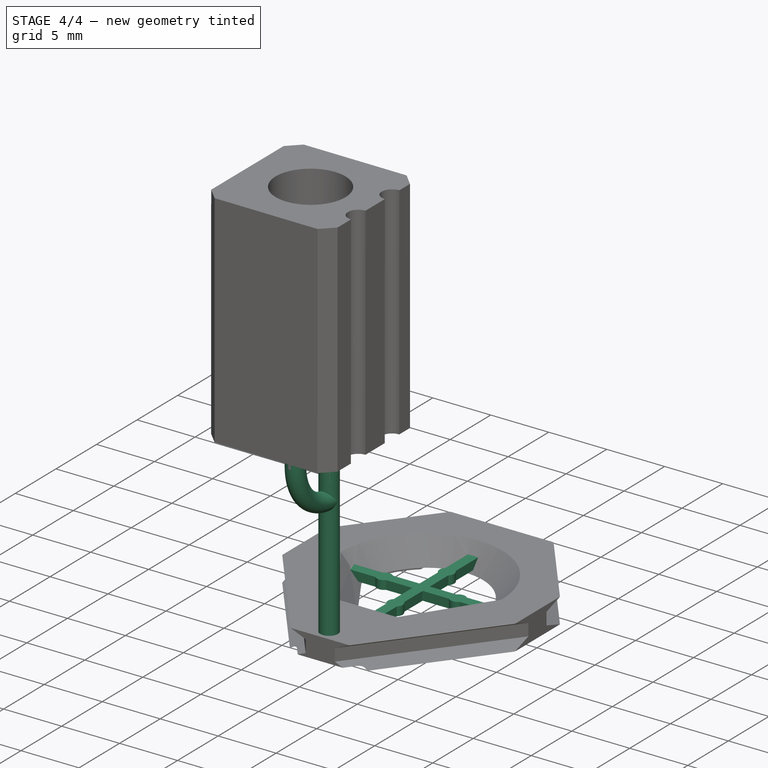
[diagram: stage 4 of 4 — iso view after this stage's code; geometry added in this stage tinted green]
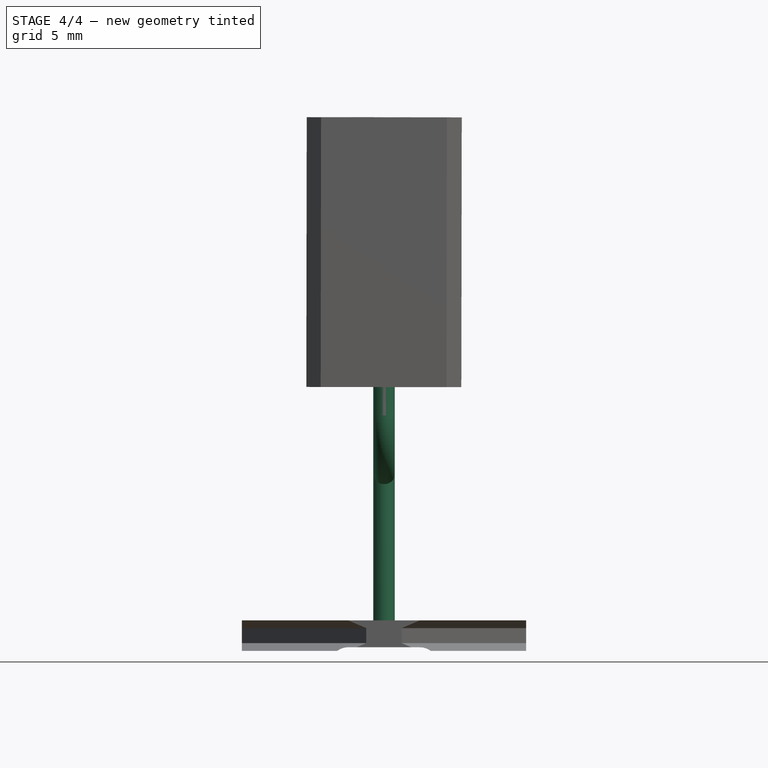
[diagram: stage 4 of 4 — front view after this stage's code; geometry added in this stage tinted green]
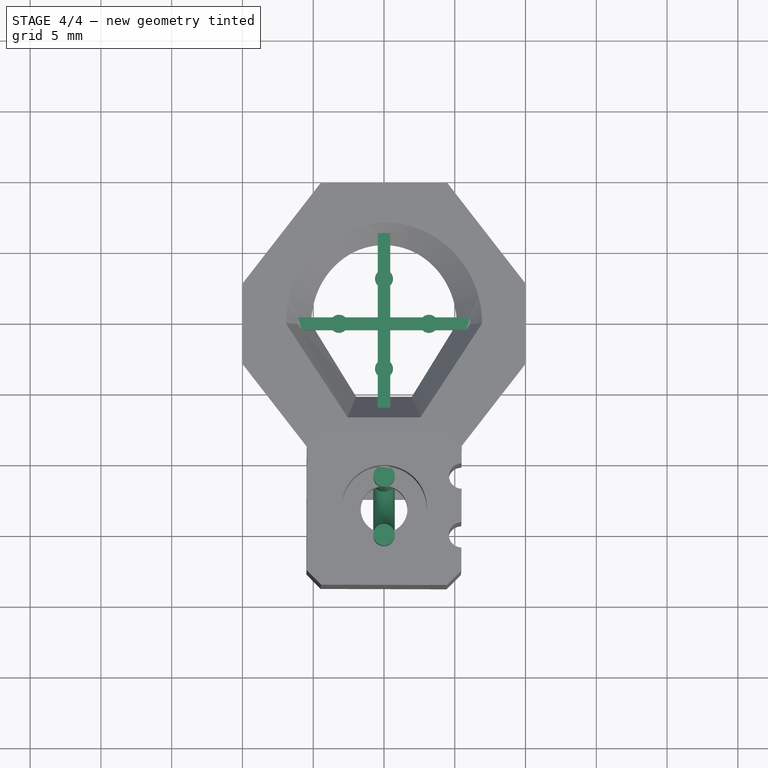
[diagram: stage 4 of 4 — top view after this stage's code; geometry added in this stage tinted green]
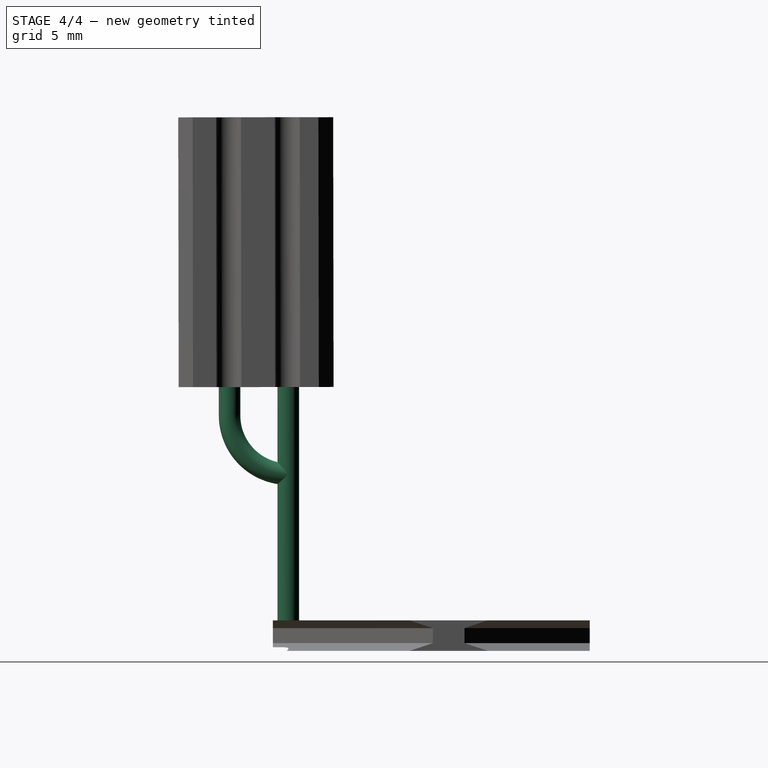
[diagram: stage 4 of 4 — right view after this stage's code; geometry added in this stage tinted green]
FEATURE [PartDesign::Pad] Pad
  BaseFeature = -> Pocket002
  Length = 0.762
  Length2 = 100.076
  Profile = -> Sketch018
  Type = 0
FEATURE [Sketcher::SketchObject] Sketch025  label="Handle post"
  MapMode = 5
  Placement = pos=(0,0,2.159) rot=(0,0,1;0rad)
  Support = -> [Pad]
  sketch-geometry (1):
    g0: Circle CenterX=0 CenterY=-11.3284 CenterZ=0 NormalX=0 NormalY=0 NormalZ=1 AngleXU=0 Radius=0.762
  constraints (3):
    c: DistanceX(g0) = 0
    c: DistanceY(g0) = -11.3284
    c: Radius(g0) = 0.762
FEATURE [PartDesign::Pad] Pad001
  BaseFeature = -> Pad
  Length = 31.75
  Length2 = 100.076
  Profile = -> Sketch025
  Type = 0
FEATURE [Sketcher::SketchObject] Sketch037  label="Cactus branch path"
  MapMode = 5
  Placement = pos=(0,0,0) rot=(0.57735,0.57735,0.57735;2.0944rad)
  Support = -> [YZ_Plane]
  expr: Constraints[22] = 0.42999999999999999" / 3 + 0.059999999999999998" / 3
  expr: Constraints[13] = -0.44600000000000001" + 0.42999999999999999" / 3 - 0.059999999999999998" / 6
  expr: Constraints[19] = 1.25" + 0.085000000000000006"
  expr: Constraints[17] = 0.42999999999999999" / 3 - 0.059999999999999998" / 6
  expr: Constraints[20] = 0.59999999999999998" + 0.085000000000000006"
  sketch-geometry (7):
    g0: ArcOfCircle CenterX=-11.3284 CenterY=16.637 CenterZ=0 NormalX=0 NormalY=0 NormalZ=1 AngleXU=0 Radius=4.14867 StartAngle=3.14159 EndAngle=4.71239
    g1: LineSegment StartX=-15.4771 StartY=16.637 StartZ=0 EndX=-15.4771 EndY=33.909 EndZ=0
    g2: LineSegment [constr] StartX=-18.8637 StartY=36.449 StartZ=0 EndX=-7.94173 EndY=36.449 EndZ=0
    g3: LineSegment [constr] StartX=-7.94173 StartY=36.449 StartZ=0 EndX=-7.94173 EndY=17.399 EndZ=0
    g4: LineSegment [constr] StartX=-7.94173 StartY=17.399 StartZ=0 EndX=-18.8637 EndY=17.399 EndZ=0
    g5: LineSegment [constr] StartX=-18.8637 StartY=17.399 StartZ=0 EndX=-18.8637 EndY=36.449 EndZ=0
    g6: LineSegment [constr] StartX=-11.3284 StartY=36.449 StartZ=0 EndX=-11.3284 EndY=17.399 EndZ=0
  constraints (23):
    c: Tangent(g0,g1) = 1.5708
    c: Vertical(g1)
    c: DistanceX(g0,g0) = 0
    c: Coincident(g2,g3)
    c: Coincident(g3,g4)
    c: Coincident(g4,g5)
    c: Coincident(g5,g2)
    c: Horizontal(g2)
    c: Horizontal(g4)
    c: Vertical(g3)
    c: Vertical(g5)
    c: Distance(g2) = 10.922
    c: Distance(g3) = 19.05
    c: DistanceX(g2) = -7.94173
    c: PointOnObject(g6,g4)
    c: PointOnObject(g6,g2)
    c: Vertical(g6)
    c: DistanceX(g6,g2) = 3.38667
    c: DistanceX(g0,g6) = 0
    c: DistanceY(g1) = 33.909
    c: DistanceY(g4) = 17.399
    c: DistanceY(g0,g4) = 0.762
    c: DistanceX(g1,g6) = 4.14867
FEATURE [Sketcher::SketchObject] Sketch038  label="Cactus branch profile"
  MapMode = 5
  Placement = pos=(0,0,33.909) rot=(0,0,1;0rad)
  Support = -> [Pad001]
  expr: Constraints[2] = -0.44600000000000001" - (0.4300000000000001" + 0.059999999999999998") / 3
  sketch-geometry (1):
    g0: Circle CenterX=0 CenterY=-15.4771 CenterZ=0 NormalX=0 NormalY=0 NormalZ=1 AngleXU=0 Radius=0.762
  constraints (3):
    c: Radius(g0) = 0.762
    c: DistanceX(g0) = 0
    c: DistanceY(g0) = -15.4771
FEATURE [PartDesign::AdditivePipe] AdditivePipe
  AuxilleryCurvelinear = true
  AuxillerySpineTangent = false
  BaseFeature = -> Pad001
  Binormal = (0,0,0)
  Mode = 0
  Profile = -> Sketch038
  Spine = -> Sketch037 [Edge1,Edge2]
  SpineTangent = false
  Transformation = 0
  Transition = 0
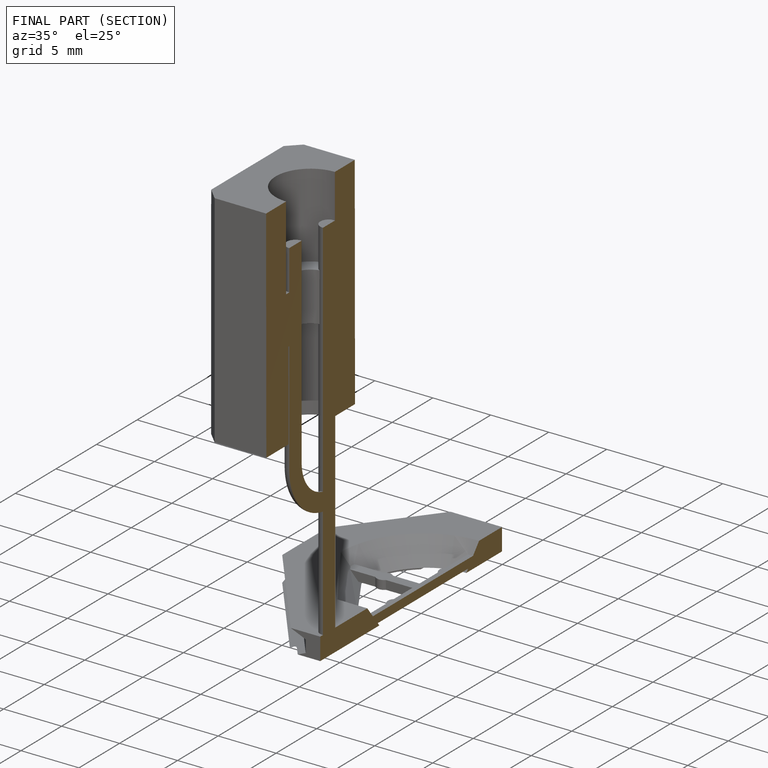
[diagram: finished part — half-section view (interior)]
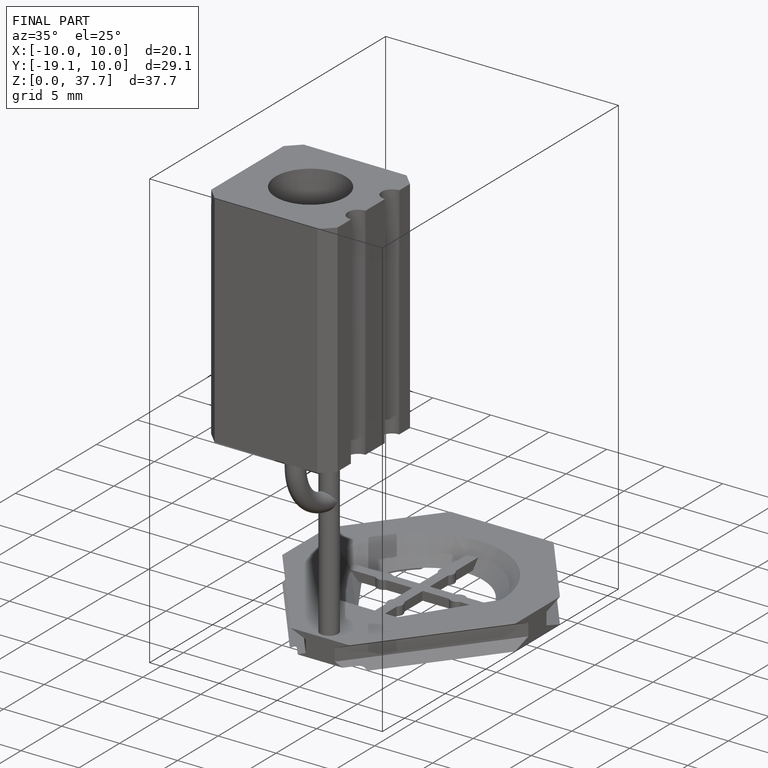
[diagram: finished part — iso view with bounding-box wireframe]
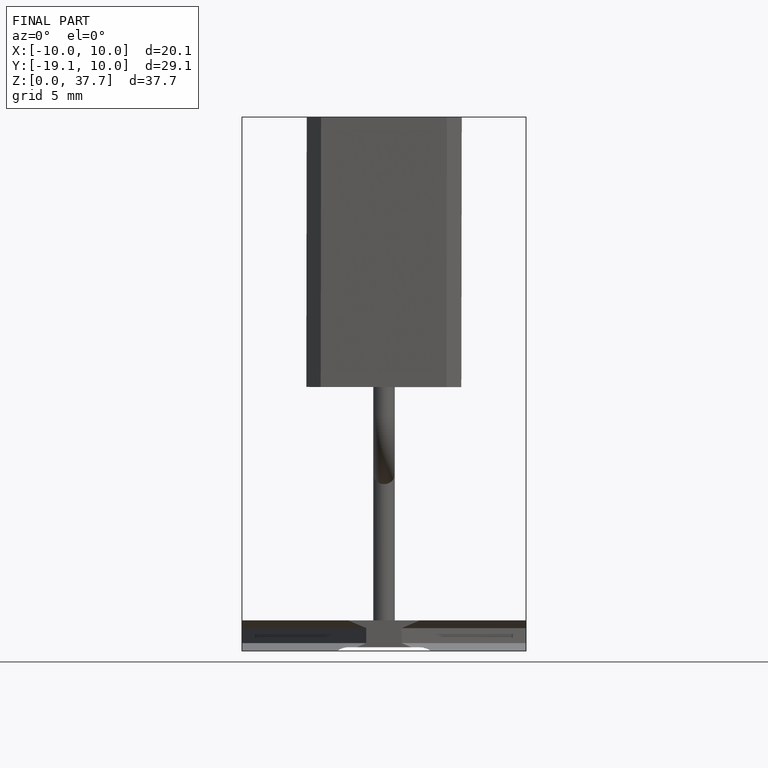
[diagram: finished part — front view with bounding-box wireframe]
